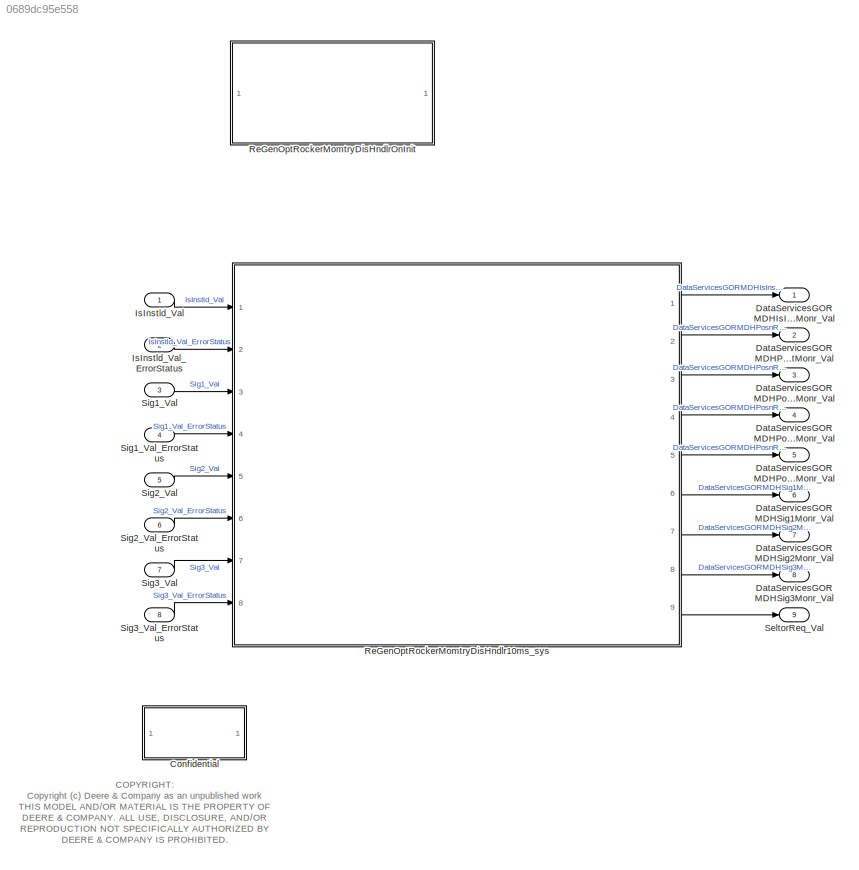
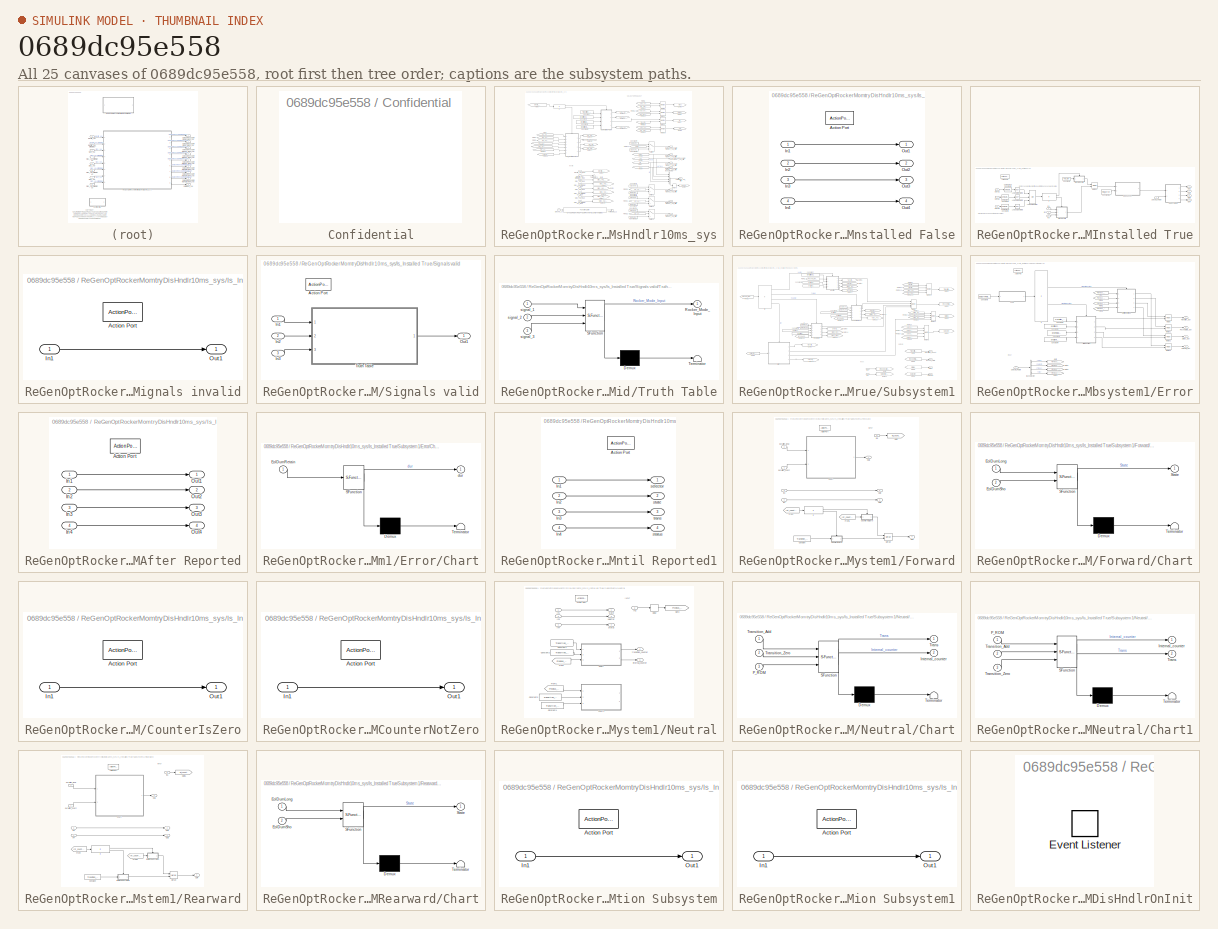
[diagram: thumbnail index - all 25 canvases of the model, root first then tree order]
MODEL slx_0689dc95e558
KIND model
CONFIG AbsTol = auto
CONFIG EnableMultiTasking = off
CONFIG FixedStep = 0.01
CONFIG MaxStep = auto
CONFIG MinStep = auto
CONFIG RelTol = 1e-3
CONFIG SampleTimeConstraint = Unconstrained
CONFIG Solver = FixedStepDiscrete
CONFIG SolverName = FixedStepDiscrete
CONFIG StartTime = 0.0
CONFIG StopTime = 10.0
BLOCK [SubSystem] Confidential
  Ports = []
  RequestExecContextInheritance = off
  Variant = off
BLOCK [Outport] DataServicesGORMDHIsInstldMonr_Val
  IconDisplay = Port number
  OutDataTypeStr = Enum: DiagBool
  PortDimensions = 1
  SamplingMode = Sample based
  SignalType = real
BLOCK [Outport] DataServicesGORMDHPosnReqSeldStMonr_Val
  IconDisplay = Port number
  OutDataTypeStr = Enum: EnCtrlDisSt
  Port = 2
  PortDimensions = 1
  SamplingMode = Sample based
  SignalType = real
BLOCK [Outport] DataServicesGORMDHPosnReqSelnMonr_Val
  IconDisplay = Port number
  OutDataTypeStr = Enum: EnCtrlSeln
  Port = 3
  PortDimensions = 1
  SamplingMode = Sample based
  SignalType = real
BLOCK [Outport] DataServicesGORMDHPosnReqStsMonr_Val
  IconDisplay = Port number
  OutDataTypeStr = Enum: EnCtrlSts
  Port = 4
  PortDimensions = 1
  SamplingMode = Sample based
  SignalType = real
BLOCK [Outport] DataServicesGORMDHPosnReqTransMonr_Val
  IconDisplay = Port number
  OutDataTypeStr = CntAbsMod
  Port = 5
  PortDimensions = 1
  SamplingMode = Sample based
  SignalType = real
BLOCK [Outport] DataServicesGORMDHSig1Monr_Val
  IconDisplay = Port number
  OutDataTypeStr = Enum: DiagBool
  Port = 6
  PortDimensions = 1
  SamplingMode = Sample based
  SignalType = real
BLOCK [Outport] DataServicesGORMDHSig2Monr_Val
  IconDisplay = Port number
  OutDataTypeStr = Enum: DiagBool
  Port = 7
  PortDimensions = 1
  SamplingMode = Sample based
  SignalType = real
BLOCK [Outport] DataServicesGORMDHSig3Monr_Val
  IconDisplay = Port number
  OutDataTypeStr = Enum: DiagBool
  Port = 8
  PortDimensions = 1
  SamplingMode = Sample based
  SignalType = real
BLOCK [Inport] IsInstld_Val
  IconDisplay = Port number
  OutDataTypeStr = Bool
  PortDimensions = 1
  SamplingMode = Sample based
  SignalType = real
BLOCK [Inport] IsInstld_Val_ErrorStatus
  IconDisplay = Port number
  OutDataTypeStr = uint8
  Port = 2
  PortDimensions = 1
  SamplingMode = Sample based
  SignalType = real
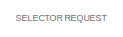
[diagram: ReGenOptRockerMomtryDisHndlr10ms_sys - part 1/3, top center region]
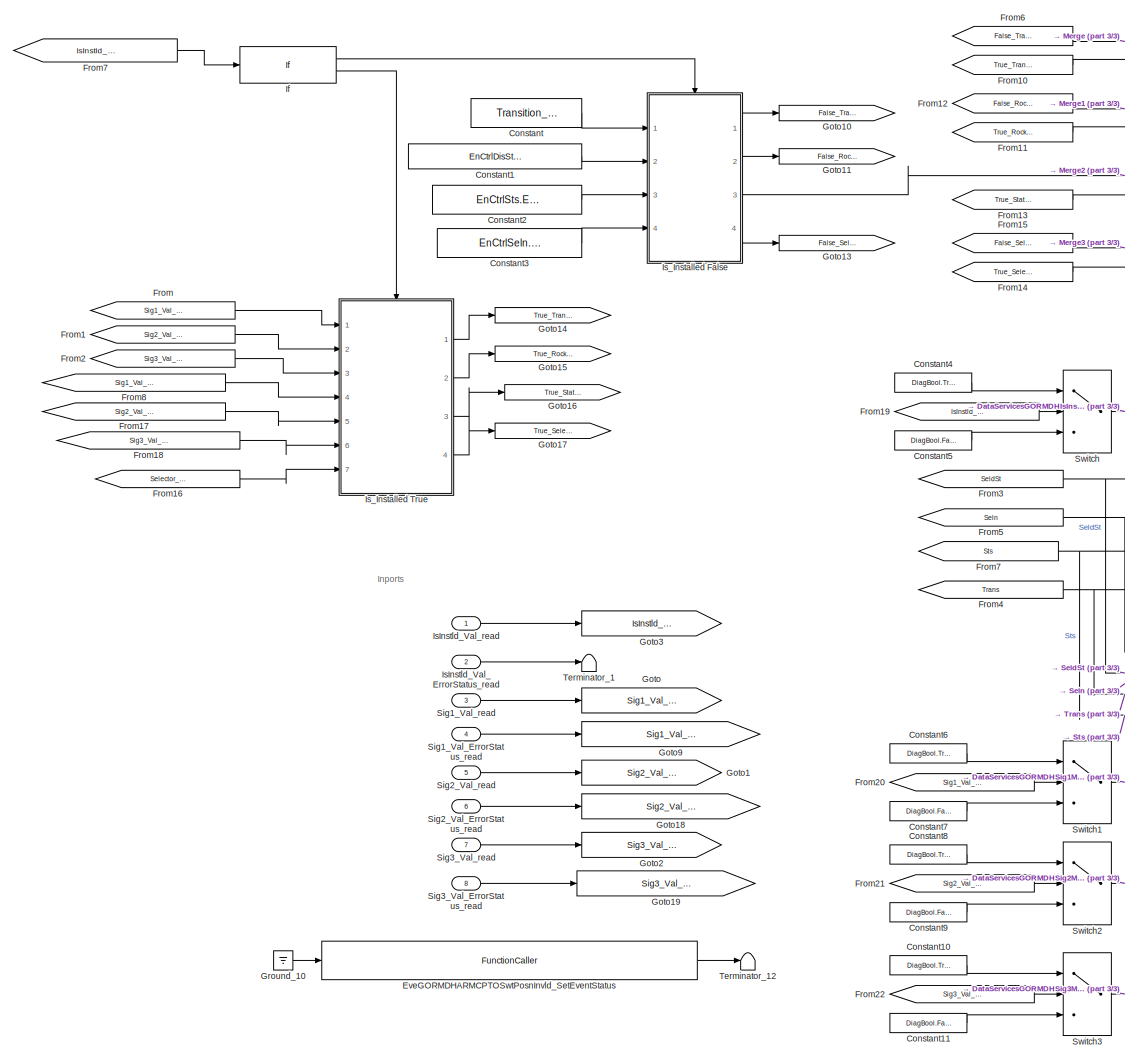
[diagram: ReGenOptRockerMomtryDisHndlr10ms_sys - part 2/3, most of the canvas]
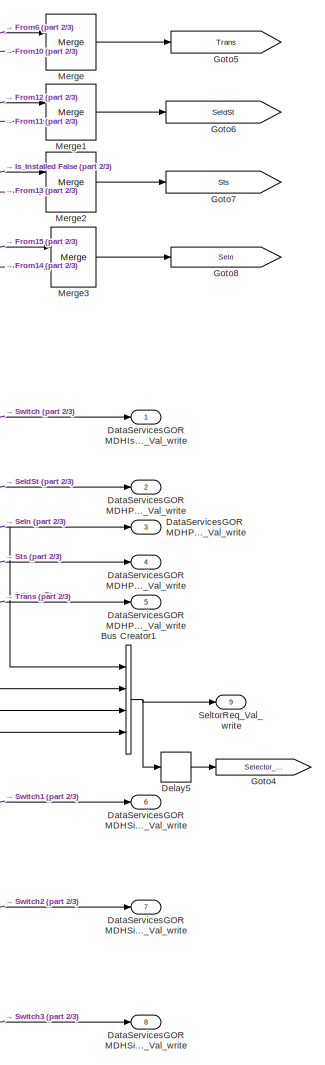
[diagram: ReGenOptRockerMomtryDisHndlr10ms_sys - part 3/3, right side, full height]
BLOCK [SubSystem] ReGenOptRockerMomtryDisHndlr10ms_sys
  Ports = [8, 9]
  RequestExecContextInheritance = off
  SystemSampleTime = 0.01
  TreatAsAtomicUnit = on
  Variant = off
BLOCK [BusCreator] ReGenOptRockerMomtryDisHndlr10ms_sys/Bus Creator1
  DisplayOption = bar
  InheritFromInputs = on
  Inputs = 4
  OutDataTypeStr = Bus: RecCtrlSelr
  Ports = [4, 1]
BLOCK [Constant] ReGenOptRockerMomtryDisHndlr10ms_sys/Constant
  OutDataTypeStr = CntAbsMod
  Value = Transition_Zero
BLOCK [Constant] ReGenOptRockerMomtryDisHndlr10ms_sys/Constant1
  Value = EnCtrlDisSt.EnCtrlDisStIsOff
BLOCK [Constant] ReGenOptRockerMomtryDisHndlr10ms_sys/Constant10
  Value = DiagBool.True
BLOCK [Constant] ReGenOptRockerMomtryDisHndlr10ms_sys/Constant11
  Value = DiagBool.False
BLOCK [Constant] ReGenOptRockerMomtryDisHndlr10ms_sys/Constant2
  Value = EnCtrlSts.EnCtrlStsIsNotAvl
BLOCK [Constant] ReGenOptRockerMomtryDisHndlr10ms_sys/Constant3
  Value = EnCtrlSeln.EnCtrlSelnIsNone
BLOCK [Constant] ReGenOptRockerMomtryDisHndlr10ms_sys/Constant4
  Value = DiagBool.True
BLOCK [Constant] ReGenOptRockerMomtryDisHndlr10ms_sys/Constant5
  Value = DiagBool.False
BLOCK [Constant] ReGenOptRockerMomtryDisHndlr10ms_sys/Constant6
  Value = DiagBool.True
BLOCK [Constant] ReGenOptRockerMomtryDisHndlr10ms_sys/Constant7
  Value = DiagBool.False
BLOCK [Constant] ReGenOptRockerMomtryDisHndlr10ms_sys/Constant8
  Value = DiagBool.True
BLOCK [Constant] ReGenOptRockerMomtryDisHndlr10ms_sys/Constant9
  Value = DiagBool.False
BLOCK [Outport] ReGenOptRockerMomtryDisHndlr10ms_sys/DataServicesGORMDHIsInstldMonr_Val_write
  IconDisplay = Port number
BLOCK [Outport] ReGenOptRockerMomtryDisHndlr10ms_sys/DataServicesGORMDHPosnReqSeldStMonr_Val_write
  IconDisplay = Port number
  Port = 2
BLOCK [Outport] ReGenOptRockerMomtryDisHndlr10ms_sys/DataServicesGORMDHPosnReqSelnMonr_Val_write
  IconDisplay = Port number
  Port = 3
BLOCK [Outport] ReGenOptRockerMomtryDisHndlr10ms_sys/DataServicesGORMDHPosnReqStsMonr_Val_write
  IconDisplay = Port number
  Port = 4
BLOCK [Outport] ReGenOptRockerMomtryDisHndlr10ms_sys/DataServicesGORMDHPosnReqTransMonr_Val_write
  IconDisplay = Port number
  Port = 5
BLOCK [Outport] ReGenOptRockerMomtryDisHndlr10ms_sys/DataServicesGORMDHSig1Monr_Val_write
  IconDisplay = Port number
  Port = 6
BLOCK [Outport] ReGenOptRockerMomtryDisHndlr10ms_sys/DataServicesGORMDHSig2Monr_Val_write
  IconDisplay = Port number
  Port = 7
BLOCK [Outport] ReGenOptRockerMomtryDisHndlr10ms_sys/DataServicesGORMDHSig3Monr_Val_write
  IconDisplay = Port number
  Port = 8
BLOCK [Delay] ReGenOptRockerMomtryDisHndlr10ms_sys/Delay5
  DelayLength = 1
  InitialCondition = 0
  InputPortMap = u0
  Ports = [1, 1]
BLOCK [FunctionCaller] ReGenOptRockerMomtryDisHndlr10ms_sys/EveGORMDHARMCPTOSwtPosnInvld_SetEventStatus
  Description = API for SWCs to report a monitor result to the Dem.This function is reentrant (for different EventId).This function is not reentrant with the other operations defined in DiagnosticMonitor (for the same EventId)This function is synchronous.
  FunctionPrototype = ERR = EveGORMDHARMCPTOSwtPosnInvld_SetEventStatus(EventStatus)
  InputArgumentSpecifications = Dem_EventStatusType.DEM_EVENT_STATUS_PASSED
  OutputArgumentSpecifications = P_Std_ReturnType
  Ports = [1, 1]
BLOCK [From] ReGenOptRockerMomtryDisHndlr10ms_sys/From
  GotoTag = Sig1_Val_read_Tag
BLOCK [From] ReGenOptRockerMomtryDisHndlr10ms_sys/From1
  GotoTag = Sig2_Val_read_Tag
BLOCK [From] ReGenOptRockerMomtryDisHndlr10ms_sys/From10
  GotoTag = True_Transition
BLOCK [From] ReGenOptRockerMomtryDisHndlr10ms_sys/From11
  GotoTag = True_Rocker_State
BLOCK [From] ReGenOptRockerMomtryDisHndlr10ms_sys/From12
  GotoTag = False_Rocker_State
BLOCK [From] ReGenOptRockerMomtryDisHndlr10ms_sys/From13
  GotoTag = True_Status
BLOCK [From] ReGenOptRockerMomtryDisHndlr10ms_sys/From14
  GotoTag = True_Selector
BLOCK [From] ReGenOptRockerMomtryDisHndlr10ms_sys/From15
  GotoTag = False_Selector
BLOCK [From] ReGenOptRockerMomtryDisHndlr10ms_sys/From16
  GotoTag = Selector_Retain
BLOCK [From] ReGenOptRockerMomtryDisHndlr10ms_sys/From17
  GotoTag = Sig2_Val_ErrorStatus_read_Tag
BLOCK [From] ReGenOptRockerMomtryDisHndlr10ms_sys/From18
  GotoTag = Sig3_Val_ErrorStatus_read_Tag
BLOCK [From] ReGenOptRockerMomtryDisHndlr10ms_sys/From19
  GotoTag = IsInstld_Val_read_Tag
BLOCK [From] ReGenOptRockerMomtryDisHndlr10ms_sys/From2
  GotoTag = Sig3_Val_read_Tag
BLOCK [From] ReGenOptRockerMomtryDisHndlr10ms_sys/From20
  GotoTag = Sig1_Val_read_Tag
BLOCK [From] ReGenOptRockerMomtryDisHndlr10ms_sys/From21
  GotoTag = Sig2_Val_read_Tag
BLOCK [From] ReGenOptRockerMomtryDisHndlr10ms_sys/From22
  GotoTag = Sig3_Val_read_Tag
BLOCK [From] ReGenOptRockerMomtryDisHndlr10ms_sys/From3
  GotoTag = SeldSt
BLOCK [From] ReGenOptRockerMomtryDisHndlr10ms_sys/From4
  GotoTag = Trans
BLOCK [From] ReGenOptRockerMomtryDisHndlr10ms_sys/From5
  GotoTag = Seln
BLOCK [From] ReGenOptRockerMomtryDisHndlr10ms_sys/From6
  GotoTag = False_Transition
BLOCK [From] ReGenOptRockerMomtryDisHndlr10ms_sys/From7
  GotoTag = Sts
BLOCK [From] ReGenOptRockerMomtryDisHndlr10ms_sys/From7 
  GotoTag = IsInstld_Val_read_Tag
BLOCK [From] ReGenOptRockerMomtryDisHndlr10ms_sys/From8
  GotoTag = Sig1_Val_ErrorStatus_read_Tag
BLOCK [Goto] ReGenOptRockerMomtryDisHndlr10ms_sys/Goto
  GotoTag = Sig1_Val_read_Tag
BLOCK [Goto] ReGenOptRockerMomtryDisHndlr10ms_sys/Goto1
  GotoTag = Sig2_Val_read_Tag
BLOCK [Goto] ReGenOptRockerMomtryDisHndlr10ms_sys/Goto10
  GotoTag = False_Transition
BLOCK [Goto] ReGenOptRockerMomtryDisHndlr10ms_sys/Goto11
  GotoTag = False_Rocker_State
BLOCK [Goto] ReGenOptRockerMomtryDisHndlr10ms_sys/Goto13
  GotoTag = False_Selector
BLOCK [Goto] ReGenOptRockerMomtryDisHndlr10ms_sys/Goto14
  GotoTag = True_Transition
BLOCK [Goto] ReGenOptRockerMomtryDisHndlr10ms_sys/Goto15
  GotoTag = True_Rocker_State
BLOCK [Goto] ReGenOptRockerMomtryDisHndlr10ms_sys/Goto16
  GotoTag = True_Status
BLOCK [Goto] ReGenOptRockerMomtryDisHndlr10ms_sys/Goto17
  GotoTag = True_Selector
BLOCK [Goto] ReGenOptRockerMomtryDisHndlr10ms_sys/Goto18
  GotoTag = Sig2_Val_ErrorStatus_read_Tag
BLOCK [Goto] ReGenOptRockerMomtryDisHndlr10ms_sys/Goto19
  GotoTag = Sig3_Val_ErrorStatus_read_Tag
BLOCK [Goto] ReGenOptRockerMomtryDisHndlr10ms_sys/Goto2
  GotoTag = Sig3_Val_read_Tag
BLOCK [Goto] ReGenOptRockerMomtryDisHndlr10ms_sys/Goto3
  GotoTag = IsInstld_Val_read_Tag
BLOCK [Goto] ReGenOptRockerMomtryDisHndlr10ms_sys/Goto4
  GotoTag = Selector_Retain
BLOCK [Goto] ReGenOptRockerMomtryDisHndlr10ms_sys/Goto5
  GotoTag = Trans
BLOCK [Goto] ReGenOptRockerMomtryDisHndlr10ms_sys/Goto6
  GotoTag = SeldSt
BLOCK [Goto] ReGenOptRockerMomtryDisHndlr10ms_sys/Goto7
  GotoTag = Sts
BLOCK [Goto] ReGenOptRockerMomtryDisHndlr10ms_sys/Goto8
  GotoTag = Seln
BLOCK [Goto] ReGenOptRockerMomtryDisHndlr10ms_sys/Goto9
  GotoTag = Sig1_Val_ErrorStatus_read_Tag
BLOCK [Ground] ReGenOptRockerMomtryDisHndlr10ms_sys/Ground_10
BLOCK [If] ReGenOptRockerMomtryDisHndlr10ms_sys/If
  ElseIfExpressions = u1 == 1
  IfExpression = u1 == 0
  Ports = [1, 2]
  ShowElse = off
BLOCK [Inport] ReGenOptRockerMomtryDisHndlr10ms_sys/IsInstld_Val_ErrorStatus_read
  IconDisplay = Port number
  Port = 2
BLOCK [Inport] ReGenOptRockerMomtryDisHndlr10ms_sys/IsInstld_Val_read
  IconDisplay = Port number
BLOCK [SubSystem] ReGenOptRockerMomtryDisHndlr10ms_sys/Is_Installed False
  Ports = [4, 4, 0, 0, 0, 0, 0, 1]
  RequestExecContextInheritance = off
  TreatAsAtomicUnit = on
  Variant = off
BLOCK [ActionPort] ReGenOptRockerMomtryDisHndlr10ms_sys/Is_Installed False/Action Port
  ActionType = then
BLOCK [Inport] ReGenOptRockerMomtryDisHndlr10ms_sys/Is_Installed False/In1
  IconDisplay = Port number
BLOCK [Inport] ReGenOptRockerMomtryDisHndlr10ms_sys/Is_Installed False/In2
  IconDisplay = Port number
  Port = 2
BLOCK [Inport] ReGenOptRockerMomtryDisHndlr10ms_sys/Is_Installed False/In3
  IconDisplay = Port number
  Port = 3
BLOCK [Inport] ReGenOptRockerMomtryDisHndlr10ms_sys/Is_Installed False/In4
  IconDisplay = Port number
  Port = 4
BLOCK [Outport] ReGenOptRockerMomtryDisHndlr10ms_sys/Is_Installed False/Out1
  IconDisplay = Port number
BLOCK [Outport] ReGenOptRockerMomtryDisHndlr10ms_sys/Is_Installed False/Out2
  IconDisplay = Port number
  Port = 2
BLOCK [Outport] ReGenOptRockerMomtryDisHndlr10ms_sys/Is_Installed False/Out3
  IconDisplay = Port number
  Port = 3
BLOCK [Outport] ReGenOptRockerMomtryDisHndlr10ms_sys/Is_Installed False/Out4
  IconDisplay = Port number
  Port = 4
BLOCK [SubSystem] ReGenOptRockerMomtryDisHndlr10ms_sys/Is_Installed True
  Ports = [7, 4, 0, 0, 0, 0, 0, 1]
  RequestExecContextInheritance = off
  TreatAsAtomicUnit = on
  Variant = off
BLOCK [ActionPort] ReGenOptRockerMomtryDisHndlr10ms_sys/Is_Installed True/Action Port
  ActionType = elseif
BLOCK [Reference] ReGenOptRockerMomtryDisHndlr10ms_sys/Is_Installed True/Compare To Constant1  REF=simulink/Logic and Bit
Operations/Compare
To Constant
  Ports = [1, 1]
  SourceBlock = simulink/Logic and Bit\nOperations/Compare\nTo Constant
  SourceProductBaseCode = SL
  SourceProductName = Simulink
  SourceType = Compare To Constant
BLOCK [Reference] ReGenOptRockerMomtryDisHndlr10ms_sys/Is_Installed True/Compare To Constant2  REF=simulink/Logic and Bit
Operations/Compare
To Constant
  Ports = [1, 1]
  SourceBlock = simulink/Logic and Bit\nOperations/Compare\nTo Constant
  SourceProductBaseCode = SL
  SourceProductName = Simulink
  SourceType = Compare To Constant
BLOCK [Reference] ReGenOptRockerMomtryDisHndlr10ms_sys/Is_Installed True/Compare To Constant3  REF=simulink/Logic and Bit
Operations/Compare
To Constant
  Ports = [1, 1]
  SourceBlock = simulink/Logic and Bit\nOperations/Compare\nTo Constant
  SourceProductBaseCode = SL
  SourceProductName = Simulink
  SourceType = Compare To Constant
BLOCK [Constant] ReGenOptRockerMomtryDisHndlr10ms_sys/Is_Installed True/Constant1
  Value = RMI_Error
BLOCK [Constant] ReGenOptRockerMomtryDisHndlr10ms_sys/Is_Installed True/Constant12
  Value = RMI_Error
BLOCK [ModelReference] ReGenOptRockerMomtryDisHndlr10ms_sys/Is_Installed True/Debouncer 
  ModelNameDialog = GDS_Model.slx
  ModelReferenceVersion = 1.8
  Ports = [2, 1]
  Variant = off
BLOCK [If] ReGenOptRockerMomtryDisHndlr10ms_sys/Is_Installed True/If
  ElseIfExpressions = u1 == 0
  IfExpression = u1 == 1
  Ports = [1, 2]
  ShowElse = off
BLOCK [Inport] ReGenOptRockerMomtryDisHndlr10ms_sys/Is_Installed True/In1
  IconDisplay = Port number
BLOCK [Inport] ReGenOptRockerMomtryDisHndlr10ms_sys/Is_Installed True/In2
  IconDisplay = Port number
  Port = 2
BLOCK [Inport] ReGenOptRockerMomtryDisHndlr10ms_sys/Is_Installed True/In3
  IconDisplay = Port number
  Port = 3
BLOCK [Logic] ReGenOptRockerMomtryDisHndlr10ms_sys/Is_Installed True/Logical Operator
  AllPortsSameDT = off
  Inputs = 3
  Operator = OR
  OutDataTypeStr = boolean
  Ports = [3, 1]
BLOCK [Logic] ReGenOptRockerMomtryDisHndlr10ms_sys/Is_Installed True/Logical Operator1
  AllPortsSameDT = off
  Operator = NOT
  OutDataTypeStr = boolean
  Ports = [1, 1]
BLOCK [Logic] ReGenOptRockerMomtryDisHndlr10ms_sys/Is_Installed True/Logical Operator2
  AllPortsSameDT = off
  Operator = NOT
  OutDataTypeStr = boolean
  Ports = [1, 1]
BLOCK [Logic] ReGenOptRockerMomtryDisHndlr10ms_sys/Is_Installed True/Logical Operator3
  AllPortsSameDT = off
  Operator = NOT
  OutDataTypeStr = boolean
  Ports = [1, 1]
BLOCK [Merge] ReGenOptRockerMomtryDisHndlr10ms_sys/Is_Installed True/Merge4
  Ports = [2, 1]
BLOCK [Outport] ReGenOptRockerMomtryDisHndlr10ms_sys/Is_Installed True/Out1
  IconDisplay = Port number
BLOCK [Outport] ReGenOptRockerMomtryDisHndlr10ms_sys/Is_Installed True/Out2
  IconDisplay = Port number
  Port = 2
BLOCK [Outport] ReGenOptRockerMomtryDisHndlr10ms_sys/Is_Installed True/Out3
  IconDisplay = Port number
  Port = 3
BLOCK [Outport] ReGenOptRockerMomtryDisHndlr10ms_sys/Is_Installed True/Out4
  IconDisplay = Port number
  Port = 4
BLOCK [Inport] ReGenOptRockerMomtryDisHndlr10ms_sys/Is_Installed True/Selector_Retain
  IconDisplay = Port number
  Port = 7
BLOCK [SubSystem] ReGenOptRockerMomtryDisHndlr10ms_sys/Is_Installed True/Signals invalid
  Ports = [1, 1, 0, 0, 0, 0, 0, 1]
  RequestExecContextInheritance = off
  TreatAsAtomicUnit = on
  Variant = off
BLOCK [ActionPort] ReGenOptRockerMomtryDisHndlr10ms_sys/Is_Installed True/Signals invalid/Action Port
  ActionType = then
BLOCK [Inport] ReGenOptRockerMomtryDisHndlr10ms_sys/Is_Installed True/Signals invalid/In1
  IconDisplay = Port number
BLOCK [Outport] ReGenOptRockerMomtryDisHndlr10ms_sys/Is_Installed True/Signals invalid/Out1
  IconDisplay = Port number
BLOCK [SubSystem] ReGenOptRockerMomtryDisHndlr10ms_sys/Is_Installed True/Signals valid
  Ports = [3, 1, 0, 0, 0, 0, 0, 1]
  RequestExecContextInheritance = off
  TreatAsAtomicUnit = on
  Variant = off
BLOCK [ActionPort] ReGenOptRockerMomtryDisHndlr10ms_sys/Is_Installed True/Signals valid/Action Port
  ActionType = elseif
BLOCK [Inport] ReGenOptRockerMomtryDisHndlr10ms_sys/Is_Installed True/Signals valid/In1
  IconDisplay = Port number
BLOCK [Inport] ReGenOptRockerMomtryDisHndlr10ms_sys/Is_Installed True/Signals valid/In2
  IconDisplay = Port number
  Port = 2
BLOCK [Inport] ReGenOptRockerMomtryDisHndlr10ms_sys/Is_Installed True/Signals valid/In3
  IconDisplay = Port number
  Port = 3
BLOCK [Outport] ReGenOptRockerMomtryDisHndlr10ms_sys/Is_Installed True/Signals valid/Out1
  IconDisplay = Port number
BLOCK [SubSystem] ReGenOptRockerMomtryDisHndlr10ms_sys/Is_Installed True/Signals valid/Truth Table
  ErrorFcn = Stateflow.Translate.translate
  PermitHierarchicalResolution = ExplicitOnly
  Ports = [3, 1]
  RequestExecContextInheritance = off
  SFBlockType = Truth Table
  TreatAsAtomicUnit = on
  Variant = off
BLOCK [Demux] ReGenOptRockerMomtryDisHndlr10ms_sys/Is_Installed True/Signals valid/Truth Table/ Demux 
  Outputs = 1
  Ports = [1, 1]
BLOCK [S-Function] ReGenOptRockerMomtryDisHndlr10ms_sys/Is_Installed True/Signals valid/Truth Table/ SFunction 
  EnableBusSupport = on
  FunctionName = sf_sfun
  PortCounts = [3 2]
  Ports = [3, 2]
  SFcnIsStateOwnerBlock = off
  SFunctionDeploymentMode = off
  Tag = Stateflow S-Function GenOptRockerMomtryDisHndlr 1
BLOCK [Terminator] ReGenOptRockerMomtryDisHndlr10ms_sys/Is_Installed True/Signals valid/Truth Table/ Terminator 
BLOCK [Outport] ReGenOptRockerMomtryDisHndlr10ms_sys/Is_Installed True/Signals valid/Truth Table/Rocker_Mode_Input
  IconDisplay = Port number
BLOCK [Inport] ReGenOptRockerMomtryDisHndlr10ms_sys/Is_Installed True/Signals valid/Truth Table/signal_1
  IconDisplay = Port number
BLOCK [Inport] ReGenOptRockerMomtryDisHndlr10ms_sys/Is_Installed True/Signals valid/Truth Table/signal_2
  IconDisplay = Port number
  Port = 2
BLOCK [Inport] ReGenOptRockerMomtryDisHndlr10ms_sys/Is_Installed True/Signals valid/Truth Table/signal_3
  IconDisplay = Port number
  Port = 3
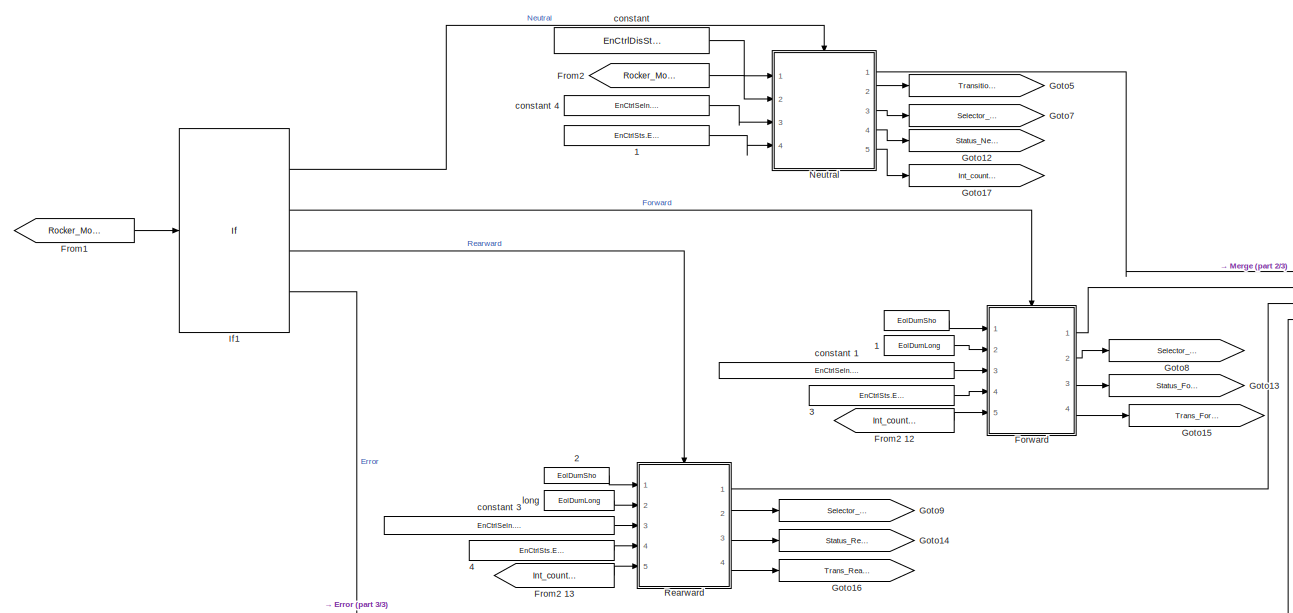
[diagram: ReGenOptRockerMomtryDisHndlr10ms_sys/Is_Installed True/Subsystem1 - part 1/3, central region]
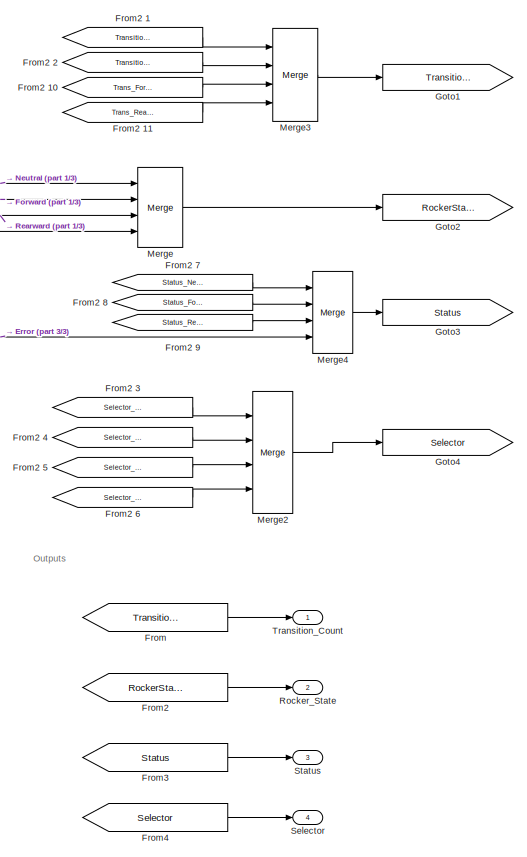
[diagram: ReGenOptRockerMomtryDisHndlr10ms_sys/Is_Installed True/Subsystem1 - part 2/3, right side, full height]
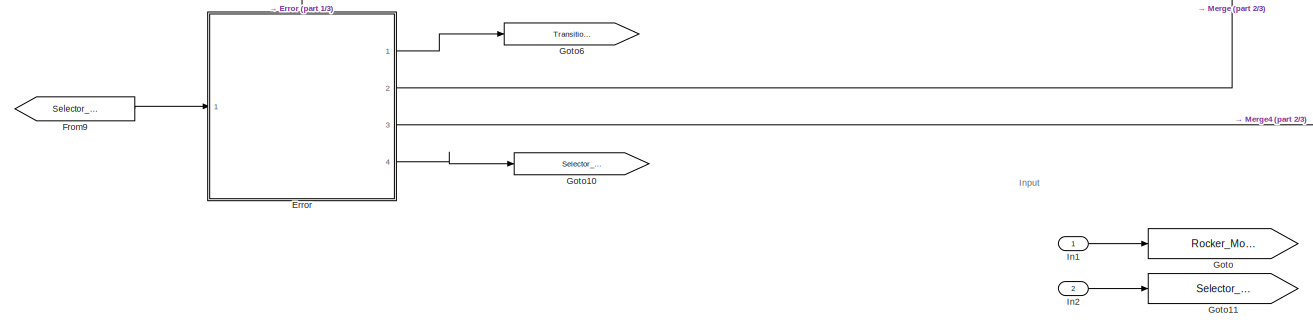
[diagram: ReGenOptRockerMomtryDisHndlr10ms_sys/Is_Installed True/Subsystem1 - part 3/3, bottom center region]
BLOCK [SubSystem] ReGenOptRockerMomtryDisHndlr10ms_sys/Is_Installed True/Subsystem1
  Ports = [2, 4]
  RequestExecContextInheritance = off
  Variant = off
BLOCK [Constant] ReGenOptRockerMomtryDisHndlr10ms_sys/Is_Installed True/Subsystem1/ 
  Value = EolDurnSho
BLOCK [Constant] ReGenOptRockerMomtryDisHndlr10ms_sys/Is_Installed True/Subsystem1/ 1
  Value = EolDurnLong
BLOCK [Constant] ReGenOptRockerMomtryDisHndlr10ms_sys/Is_Installed True/Subsystem1/ 2
  Value = EolDurnSho
BLOCK [Constant] ReGenOptRockerMomtryDisHndlr10ms_sys/Is_Installed True/Subsystem1/1
  Value = EnCtrlSts.EnCtrlStsIsNormative
BLOCK [Constant] ReGenOptRockerMomtryDisHndlr10ms_sys/Is_Installed True/Subsystem1/3
  Value = EnCtrlSts.EnCtrlStsIsNormative
BLOCK [Constant] ReGenOptRockerMomtryDisHndlr10ms_sys/Is_Installed True/Subsystem1/4
  Value = EnCtrlSts.EnCtrlStsIsNormative
BLOCK [SubSystem] ReGenOptRockerMomtryDisHndlr10ms_sys/Is_Installed True/Subsystem1/Error
  Ports = [1, 4, 0, 0, 0, 0, 0, 1]
  RequestExecContextInheritance = off
  TreatAsAtomicUnit = on
  Variant = off
BLOCK [ActionPort] ReGenOptRockerMomtryDisHndlr10ms_sys/Is_Installed True/Subsystem1/Error/Action Port
  ActionType = elseif
BLOCK [SubSystem] ReGenOptRockerMomtryDisHndlr10ms_sys/Is_Installed True/Subsystem1/Error/After Reported
  Ports = [4, 4, 0, 0, 0, 0, 0, 1]
  RequestExecContextInheritance = off
  TreatAsAtomicUnit = on
  Variant = off
BLOCK [ActionPort] ReGenOptRockerMomtryDisHndlr10ms_sys/Is_Installed True/Subsystem1/Error/After Reported/Action Port
  ActionType = elseif
BLOCK [Inport] ReGenOptRockerMomtryDisHndlr10ms_sys/Is_Installed True/Subsystem1/Error/After Reported/In1
  IconDisplay = Port number
BLOCK [Inport] ReGenOptRockerMomtryDisHndlr10ms_sys/Is_Installed True/Subsystem1/Error/After Reported/In2
  IconDisplay = Port number
  Port = 2
BLOCK [Inport] ReGenOptRockerMomtryDisHndlr10ms_sys/Is_Installed True/Subsystem1/Error/After Reported/In3
  IconDisplay = Port number
  Port = 3
BLOCK [Inport] ReGenOptRockerMomtryDisHndlr10ms_sys/Is_Installed True/Subsystem1/Error/After Reported/In4
  IconDisplay = Port number
  Port = 4
BLOCK [Outport] ReGenOptRockerMomtryDisHndlr10ms_sys/Is_Installed True/Subsystem1/Error/After Reported/Out1
  IconDisplay = Port number
BLOCK [Outport] ReGenOptRockerMomtryDisHndlr10ms_sys/Is_Installed True/Subsystem1/Error/After Reported/Out2
  IconDisplay = Port number
  Port = 2
BLOCK [Outport] ReGenOptRockerMomtryDisHndlr10ms_sys/Is_Installed True/Subsystem1/Error/After Reported/Out3
  IconDisplay = Port number
  Port = 3
BLOCK [Outport] ReGenOptRockerMomtryDisHndlr10ms_sys/Is_Installed True/Subsystem1/Error/After Reported/Out4
  IconDisplay = Port number
  Port = 4
BLOCK [BusSelector] ReGenOptRockerMomtryDisHndlr10ms_sys/Is_Installed True/Subsystem1/Error/Bus Selector
  OutputAsBus = off
  OutputSignals = Seln,SeldSt,Trans,Sts
  Ports = [1, 4]
BLOCK [SubSystem] ReGenOptRockerMomtryDisHndlr10ms_sys/Is_Installed True/Subsystem1/Error/Chart
  ErrorFcn = Stateflow.Translate.translate
  PermitHierarchicalResolution = ExplicitOnly
  Ports = [1, 1]
  RequestExecContextInheritance = off
  SFBlockType = Chart
  TreatAsAtomicUnit = on
  Variant = off
BLOCK [Demux] ReGenOptRockerMomtryDisHndlr10ms_sys/Is_Installed True/Subsystem1/Error/Chart/ Demux 
  Outputs = 1
  Ports = [1, 1]
BLOCK [S-Function] ReGenOptRockerMomtryDisHndlr10ms_sys/Is_Installed True/Subsystem1/Error/Chart/ SFunction 
  EnableBusSupport = on
  FunctionName = sf_sfun
  PortCounts = [1 2]
  Ports = [1, 2]
  SFcnIsStateOwnerBlock = off
  SFunctionDeploymentMode = off
  Tag = Stateflow S-Function GenOptRockerMomtryDisHndlr 4
BLOCK [Terminator] ReGenOptRockerMomtryDisHndlr10ms_sys/Is_Installed True/Subsystem1/Error/Chart/ Terminator 
BLOCK [Inport] ReGenOptRockerMomtryDisHndlr10ms_sys/Is_Installed True/Subsystem1/Error/Chart/EolDurnRetain
  IconDisplay = Port number
BLOCK [Outport] ReGenOptRockerMomtryDisHndlr10ms_sys/Is_Installed True/Subsystem1/Error/Chart/dur
  IconDisplay = Port number
BLOCK [Constant] ReGenOptRockerMomtryDisHndlr10ms_sys/Is_Installed True/Subsystem1/Error/Constant1
  Value = Transition_Count
BLOCK [Constant] ReGenOptRockerMomtryDisHndlr10ms_sys/Is_Installed True/Subsystem1/Error/Constant2
  Value = EnCtrlDisSt.EnCtrlDisStIsOff
BLOCK [Constant] ReGenOptRockerMomtryDisHndlr10ms_sys/Is_Installed True/Subsystem1/Error/Constant3
  Value = EnCtrlSts.EnCtrlStsIsErr
BLOCK [Constant] ReGenOptRockerMomtryDisHndlr10ms_sys/Is_Installed True/Subsystem1/Error/Constant4
  Value = EnCtrlSeln.EnCtrlSelnIsNone
BLOCK [Constant] ReGenOptRockerMomtryDisHndlr10ms_sys/Is_Installed True/Subsystem1/Error/Constant5
  Value = EolDurnRetain
BLOCK [From] ReGenOptRockerMomtryDisHndlr10ms_sys/Is_Installed True/Subsystem1/Error/From
  GotoTag = Previous_Selector
BLOCK [From] ReGenOptRockerMomtryDisHndlr10ms_sys/Is_Installed True/Subsystem1/Error/From1
  GotoTag = Previous_State
BLOCK [From] ReGenOptRockerMomtryDisHndlr10ms_sys/Is_Installed True/Subsystem1/Error/From2
  GotoTag = Previous_Trans
BLOCK [From] ReGenOptRockerMomtryDisHndlr10ms_sys/Is_Installed True/Subsystem1/Error/From3
  GotoTag = Previous_Status
BLOCK [Goto] ReGenOptRockerMomtryDisHndlr10ms_sys/Is_Installed True/Subsystem1/Error/Goto
  GotoTag = Previous_Selector
BLOCK [Goto] ReGenOptRockerMomtryDisHndlr10ms_sys/Is_Installed True/Subsystem1/Error/Goto1
  GotoTag = Previous_State
BLOCK [Goto] ReGenOptRockerMomtryDisHndlr10ms_sys/Is_Installed True/Subsystem1/Error/Goto2
  GotoTag = Previous_Trans
BLOCK [Goto] ReGenOptRockerMomtryDisHndlr10ms_sys/Is_Installed True/Subsystem1/Error/Goto3
  GotoTag = Previous_Status
BLOCK [If] ReGenOptRockerMomtryDisHndlr10ms_sys/Is_Installed True/Subsystem1/Error/If
  ElseIfExpressions = u1==2
  IfExpression = u1==1
  Ports = [1, 2]
  ShowElse = off
BLOCK [Merge] ReGenOptRockerMomtryDisHndlr10ms_sys/Is_Installed True/Subsystem1/Error/Merge
  Ports = [2, 1]
BLOCK [Merge] ReGenOptRockerMomtryDisHndlr10ms_sys/Is_Installed True/Subsystem1/Error/Merge1
  Ports = [2, 1]
BLOCK [Merge] ReGenOptRockerMomtryDisHndlr10ms_sys/Is_Installed True/Subsystem1/Error/Merge2
  Ports = [2, 1]
BLOCK [Merge] ReGenOptRockerMomtryDisHndlr10ms_sys/Is_Installed True/Subsystem1/Error/Merge3
  Ports = [2, 1]
BLOCK [Outport] ReGenOptRockerMomtryDisHndlr10ms_sys/Is_Installed True/Subsystem1/Error/RockerState_Out
  IconDisplay = Port number
  Port = 2
BLOCK [Outport] ReGenOptRockerMomtryDisHndlr10ms_sys/Is_Installed True/Subsystem1/Error/Selector_Out
  IconDisplay = Port number
  Port = 4
BLOCK [Inport] ReGenOptRockerMomtryDisHndlr10ms_sys/Is_Installed True/Subsystem1/Error/Selector_Retain
  IconDisplay = Port number
BLOCK [Outport] ReGenOptRockerMomtryDisHndlr10ms_sys/Is_Installed True/Subsystem1/Error/Status_Out
  IconDisplay = Port number
  Port = 3
BLOCK [Outport] ReGenOptRockerMomtryDisHndlr10ms_sys/Is_Installed True/Subsystem1/Error/Transition_Out
  IconDisplay = Port number
BLOCK [SubSystem] ReGenOptRockerMomtryDisHndlr10ms_sys/Is_Installed True/Subsystem1/Error/Until Reported1
  Ports = [4, 4, 0, 0, 0, 0, 0, 1]
  RequestExecContextInheritance = off
  TreatAsAtomicUnit = on
  Variant = off
BLOCK [ActionPort] ReGenOptRockerMomtryDisHndlr10ms_sys/Is_Installed True/Subsystem1/Error/Until Reported1/Action Port
  ActionType = then
BLOCK [Inport] ReGenOptRockerMomtryDisHndlr10ms_sys/Is_Installed True/Subsystem1/Error/Until Reported1/In1
  IconDisplay = Port number
  OutDataTypeStr = Enum: EnCtrlSeln
BLOCK [Inport] ReGenOptRockerMomtryDisHndlr10ms_sys/Is_Installed True/Subsystem1/Error/Until Reported1/In2
  IconDisplay = Port number
  OutDataTypeStr = Enum: EnCtrlDisSt
  Port = 2
BLOCK [Inport] ReGenOptRockerMomtryDisHndlr10ms_sys/Is_Installed True/Subsystem1/Error/Until Reported1/In3
  IconDisplay = Port number
  OutDataTypeStr = CntAbsMod
  Port = 3
BLOCK [Inport] ReGenOptRockerMomtryDisHndlr10ms_sys/Is_Installed True/Subsystem1/Error/Until Reported1/In4
  IconDisplay = Port number
  OutDataTypeStr = Enum: EnCtrlSts
  Port = 4
BLOCK [Outport] ReGenOptRockerMomtryDisHndlr10ms_sys/Is_Installed True/Subsystem1/Error/Until Reported1/selector
  IconDisplay = Port number
  OutDataTypeStr = Enum: EnCtrlSeln
BLOCK [Outport] ReGenOptRockerMomtryDisHndlr10ms_sys/Is_Installed True/Subsystem1/Error/Until Reported1/state
  IconDisplay = Port number
  OutDataTypeStr = Enum: EnCtrlDisSt
  Port = 2
BLOCK [Outport] ReGenOptRockerMomtryDisHndlr10ms_sys/Is_Installed True/Subsystem1/Error/Until Reported1/status
  IconDisplay = Port number
  OutDataTypeStr = Enum: EnCtrlSts
  Port = 4
BLOCK [Outport] ReGenOptRockerMomtryDisHndlr10ms_sys/Is_Installed True/Subsystem1/Error/Until Reported1/trans
  IconDisplay = Port number
  OutDataTypeStr = CntAbsMod
  Port = 3
BLOCK [SubSystem] ReGenOptRockerMomtryDisHndlr10ms_sys/Is_Installed True/Subsystem1/Forward
  Ports = [5, 4, 0, 0, 0, 0, 0, 1]
  RequestExecContextInheritance = off
  TreatAsAtomicUnit = on
  Variant = off
BLOCK [ActionPort] ReGenOptRockerMomtryDisHndlr10ms_sys/Is_Installed True/Subsystem1/Forward/Action Port
  ActionType = elseif
BLOCK [SubSystem] ReGenOptRockerMomtryDisHndlr10ms_sys/Is_Installed True/Subsystem1/Forward/Chart
  ErrorFcn = Stateflow.Translate.translate
  PermitHierarchicalResolution = ExplicitOnly
  Ports = [2, 1]
  RequestExecContextInheritance = off
  SFBlockType = Chart
  TreatAsAtomicUnit = on
  Variant = off
BLOCK [Demux] ReGenOptRockerMomtryDisHndlr10ms_sys/Is_Installed True/Subsystem1/Forward/Chart/ Demux 
  Outputs = 1
  Ports = [1, 1]
BLOCK [S-Function] ReGenOptRockerMomtryDisHndlr10ms_sys/Is_Installed True/Subsystem1/Forward/Chart/ SFunction 
  EnableBusSupport = on
  FunctionName = sf_sfun
  PortCounts = [2 2]
  Ports = [2, 2]
  SFcnIsStateOwnerBlock = off
  SFunctionDeploymentMode = off
  Tag = Stateflow S-Function GenOptRockerMomtryDisHndlr 2
BLOCK [Terminator] ReGenOptRockerMomtryDisHndlr10ms_sys/Is_Installed True/Subsystem1/Forward/Chart/ Terminator 
BLOCK [Inport] ReGenOptRockerMomtryDisHndlr10ms_sys/Is_Installed True/Subsystem1/Forward/Chart/EolDurnLong
  IconDisplay = Port number
BLOCK [Inport] ReGenOptRockerMomtryDisHndlr10ms_sys/Is_Installed True/Subsystem1/Forward/Chart/EolDurnSho
  IconDisplay = Port number
  Port = 2
BLOCK [Outport] ReGenOptRockerMomtryDisHndlr10ms_sys/Is_Installed True/Subsystem1/Forward/Chart/State
  IconDisplay = Port number
BLOCK [Constant] ReGenOptRockerMomtryDisHndlr10ms_sys/Is_Installed True/Subsystem1/Forward/Constant
  OutDataTypeStr = CntAbsMod
  Value = Transition_Zero
BLOCK [SubSystem] ReGenOptRockerMomtryDisHndlr10ms_sys/Is_Installed True/Subsystem1/Forward/CounterIsZero
  Ports = [1, 1, 0, 0, 0, 0, 0, 1]
  RequestExecContextInheritance = off
  TreatAsAtomicUnit = on
  Variant = off
BLOCK [ActionPort] ReGenOptRockerMomtryDisHndlr10ms_sys/Is_Installed True/Subsystem1/Forward/CounterIsZero/Action Port
  ActionType = else
BLOCK [Inport] ReGenOptRockerMomtryDisHndlr10ms_sys/Is_Installed True/Subsystem1/Forward/CounterIsZero/In1
  IconDisplay = Port number
  OutDataTypeStr = CntAbsMod
BLOCK [Outport] ReGenOptRockerMomtryDisHndlr10ms_sys/Is_Installed True/Subsystem1/Forward/CounterIsZero/Out1
  IconDisplay = Port number
  OutDataTypeStr = CntAbsMod
BLOCK [SubSystem] ReGenOptRockerMomtryDisHndlr10ms_sys/Is_Installed True/Subsystem1/Forward/CounterNotZero
  Ports = [1, 1, 0, 0, 0, 0, 0, 1]
  RequestExecContextInheritance = off
  TreatAsAtomicUnit = on
  Variant = off
BLOCK [ActionPort] ReGenOptRockerMomtryDisHndlr10ms_sys/Is_Installed True/Subsystem1/Forward/CounterNotZero/Action Port
  ActionType = then
BLOCK [Inport] ReGenOptRockerMomtryDisHndlr10ms_sys/Is_Installed True/Subsystem1/Forward/CounterNotZero/In1
  IconDisplay = Port number
  OutDataTypeStr = CntAbsMod
BLOCK [Outport] ReGenOptRockerMomtryDisHndlr10ms_sys/Is_Installed True/Subsystem1/Forward/CounterNotZero/Out1
  IconDisplay = Port number
  OutDataTypeStr = CntAbsMod
BLOCK [From] ReGenOptRockerMomtryDisHndlr10ms_sys/Is_Installed True/Subsystem1/Forward/From
  GotoTag = Int_counter
BLOCK [From] ReGenOptRockerMomtryDisHndlr10ms_sys/Is_Installed True/Subsystem1/Forward/From1
  GotoTag = Int_counter
BLOCK [Goto] ReGenOptRockerMomtryDisHndlr10ms_sys/Is_Installed True/Subsystem1/Forward/Goto
  GotoTag = Int_counter
BLOCK [If] ReGenOptRockerMomtryDisHndlr10ms_sys/Is_Installed True/Subsystem1/Forward/If
  Ports = [1, 2]
BLOCK [Inport] ReGenOptRockerMomtryDisHndlr10ms_sys/Is_Installed True/Subsystem1/Forward/In3
  IconDisplay = Port number
  Port = 3
BLOCK [Inport] ReGenOptRockerMomtryDisHndlr10ms_sys/Is_Installed True/Subsystem1/Forward/In4
  IconDisplay = Port number
  Port = 4
BLOCK [Inport] ReGenOptRockerMomtryDisHndlr10ms_sys/Is_Installed True/Subsystem1/Forward/In5
  IconDisplay = Port number
  OutDataTypeStr = CntAbsMod
  Port = 5
BLOCK [Merge] ReGenOptRockerMomtryDisHndlr10ms_sys/Is_Installed True/Subsystem1/Forward/Merge
  Ports = [2, 1]
BLOCK [Outport] ReGenOptRockerMomtryDisHndlr10ms_sys/Is_Installed True/Subsystem1/Forward/Out1
  IconDisplay = Port number
BLOCK [Outport] ReGenOptRockerMomtryDisHndlr10ms_sys/Is_Installed True/Subsystem1/Forward/Out2
  IconDisplay = Port number
  Port = 2
BLOCK [Outport] ReGenOptRockerMomtryDisHndlr10ms_sys/Is_Installed True/Subsystem1/Forward/Out3
  IconDisplay = Port number
  Port = 3
BLOCK [Outport] ReGenOptRockerMomtryDisHndlr10ms_sys/Is_Installed True/Subsystem1/Forward/Out4
  IconDisplay = Port number
  OutDataTypeStr = CntAbsMod
  Port = 4
BLOCK [Inport] ReGenOptRockerMomtryDisHndlr10ms_sys/Is_Installed True/Subsystem1/Forward/duration_long
  IconDisplay = Port number
  Port = 2
BLOCK [Inport] ReGenOptRockerMomtryDisHndlr10ms_sys/Is_Installed True/Subsystem1/Forward/duration_short
  IconDisplay = Port number
BLOCK [From] ReGenOptRockerMomtryDisHndlr10ms_sys/Is_Installed True/Subsystem1/From
  GotoTag = Transition_Count
BLOCK [From] ReGenOptRockerMomtryDisHndlr10ms_sys/Is_Installed True/Subsystem1/From1
  GotoTag = Rocker_Mode_Output
BLOCK [From] ReGenOptRockerMomtryDisHndlr10ms_sys/Is_Installed True/Subsystem1/From2
  GotoTag = RockerState
BLOCK [From] ReGenOptRockerMomtryDisHndlr10ms_sys/Is_Installed True/Subsystem1/From2 
  GotoTag = Rocker_Mode_Output
BLOCK [From] ReGenOptRockerMomtryDisHndlr10ms_sys/Is_Installed True/Subsystem1/From2 1
  GotoTag = Transition_Neutral
BLOCK [From] ReGenOptRockerMomtryDisHndlr10ms_sys/Is_Installed True/Subsystem1/From2 10
  GotoTag = Trans_Forward
BLOCK [From] ReGenOptRockerMomtryDisHndlr10ms_sys/Is_Installed True/Subsystem1/From2 11
  GotoTag = Trans_Rearward
BLOCK [From] ReGenOptRockerMomtryDisHndlr10ms_sys/Is_Installed True/Subsystem1/From2 12
  GotoTag = Int_counter
BLOCK [From] ReGenOptRockerMomtryDisHndlr10ms_sys/Is_Installed True/Subsystem1/From2 13
  GotoTag = Int_counter
BLOCK [From] ReGenOptRockerMomtryDisHndlr10ms_sys/Is_Installed True/Subsystem1/From2 2
  GotoTag = Transition_Error
BLOCK [From] ReGenOptRockerMomtryDisHndlr10ms_sys/Is_Installed True/Subsystem1/From2 3
  GotoTag = Selector_None
BLOCK [From] ReGenOptRockerMomtryDisHndlr10ms_sys/Is_Installed True/Subsystem1/From2 4
  GotoTag = Selector_FUI
BLOCK [From] ReGenOptRockerMomtryDisHndlr10ms_sys/Is_Installed True/Subsystem1/From2 5
  GotoTag = Selector_BDL
BLOCK [From] ReGenOptRockerMomtryDisHndlr10ms_sys/Is_Installed True/Subsystem1/From2 6
  GotoTag = Selector_Error
BLOCK [From] ReGenOptRockerMomtryDisHndlr10ms_sys/Is_Installed True/Subsystem1/From2 7
  GotoTag = Status_Neutral
BLOCK [From] ReGenOptRockerMomtryDisHndlr10ms_sys/Is_Installed True/Subsystem1/From2 8
  GotoTag = Status_Forward
BLOCK [From] ReGenOptRockerMomtryDisHndlr10ms_sys/Is_Installed True/Subsystem1/From2 9
  GotoTag = Status_Rearward
BLOCK [From] ReGenOptRockerMomtryDisHndlr10ms_sys/Is_Installed True/Subsystem1/From3
  GotoTag = Status
BLOCK [From] ReGenOptRockerMomtryDisHndlr10ms_sys/Is_Installed True/Subsystem1/From4
  GotoTag = Selector
BLOCK [From] ReGenOptRockerMomtryDisHndlr10ms_sys/Is_Installed True/Subsystem1/From9
  GotoTag = Selector_Retain
BLOCK [Goto] ReGenOptRockerMomtryDisHndlr10ms_sys/Is_Installed True/Subsystem1/Goto
  GotoTag = Rocker_Mode_Output
BLOCK [Goto] ReGenOptRockerMomtryDisHndlr10ms_sys/Is_Installed True/Subsystem1/Goto1
  GotoTag = Transition_Count
BLOCK [Goto] ReGenOptRockerMomtryDisHndlr10ms_sys/Is_Installed True/Subsystem1/Goto10
  GotoTag = Selector_Error
BLOCK [Goto] ReGenOptRockerMomtryDisHndlr10ms_sys/Is_Installed True/Subsystem1/Goto11
  GotoTag = Selector_Retain
BLOCK [Goto] ReGenOptRockerMomtryDisHndlr10ms_sys/Is_Installed True/Subsystem1/Goto12
  GotoTag = Status_Neutral
BLOCK [Goto] ReGenOptRockerMomtryDisHndlr10ms_sys/Is_Installed True/Subsystem1/Goto13
  GotoTag = Status_Forward
BLOCK [Goto] ReGenOptRockerMomtryDisHndlr10ms_sys/Is_Installed True/Subsystem1/Goto14
  GotoTag = Status_Rearward
BLOCK [Goto] ReGenOptRockerMomtryDisHndlr10ms_sys/Is_Installed True/Subsystem1/Goto15
  GotoTag = Trans_Forward
BLOCK [Goto] ReGenOptRockerMomtryDisHndlr10ms_sys/Is_Installed True/Subsystem1/Goto16
  GotoTag = Trans_Rearward
BLOCK [Goto] ReGenOptRockerMomtryDisHndlr10ms_sys/Is_Installed True/Subsystem1/Goto17
  GotoTag = Int_counter
BLOCK [Goto] ReGenOptRockerMomtryDisHndlr10ms_sys/Is_Installed True/Subsystem1/Goto2
  GotoTag = RockerState
BLOCK [Goto] ReGenOptRockerMomtryDisHndlr10ms_sys/Is_Installed True/Subsystem1/Goto3
  GotoTag = Status
BLOCK [Goto] ReGenOptRockerMomtryDisHndlr10ms_sys/Is_Installed True/Subsystem1/Goto4
  GotoTag = Selector
BLOCK [Goto] ReGenOptRockerMomtryDisHndlr10ms_sys/Is_Installed True/Subsystem1/Goto5
  GotoTag = Transition_Neutral
BLOCK [Goto] ReGenOptRockerMomtryDisHndlr10ms_sys/Is_Installed True/Subsystem1/Goto6
  GotoTag = Transition_Error
BLOCK [Goto] ReGenOptRockerMomtryDisHndlr10ms_sys/Is_Installed True/Subsystem1/Goto7
  GotoTag = Selector_None
BLOCK [Goto] ReGenOptRockerMomtryDisHndlr10ms_sys/Is_Installed True/Subsystem1/Goto8
  GotoTag = Selector_FUI
BLOCK [Goto] ReGenOptRockerMomtryDisHndlr10ms_sys/Is_Installed True/Subsystem1/Goto9
  GotoTag = Selector_BDL
BLOCK [If] ReGenOptRockerMomtryDisHndlr10ms_sys/Is_Installed True/Subsystem1/If1
  ElseIfExpressions = u1 == 1, u1 == 2, u1 == 3
  IfExpression = u1 == 0
  Ports = [1, 4]
  ShowElse = off
BLOCK [Inport] ReGenOptRockerMomtryDisHndlr10ms_sys/Is_Installed True/Subsystem1/In1
  IconDisplay = Port number
BLOCK [Inport] ReGenOptRockerMomtryDisHndlr10ms_sys/Is_Installed True/Subsystem1/In2
  IconDisplay = Port number
  Port = 2
BLOCK [Merge] ReGenOptRockerMomtryDisHndlr10ms_sys/Is_Installed True/Subsystem1/Merge
  Inputs = 4
  Ports = [4, 1]
BLOCK [Merge] ReGenOptRockerMomtryDisHndlr10ms_sys/Is_Installed True/Subsystem1/Merge2
  Inputs = 4
  Ports = [4, 1]
BLOCK [Merge] ReGenOptRockerMomtryDisHndlr10ms_sys/Is_Installed True/Subsystem1/Merge3
  Inputs = 4
  Ports = [4, 1]
BLOCK [Merge] ReGenOptRockerMomtryDisHndlr10ms_sys/Is_Installed True/Subsystem1/Merge4
  Inputs = 4
  Ports = [4, 1]
BLOCK [SubSystem] ReGenOptRockerMomtryDisHndlr10ms_sys/Is_Installed True/Subsystem1/Neutral
  Ports = [4, 5, 0, 0, 0, 0, 0, 1]
  RequestExecContextInheritance = off
  TreatAsAtomicUnit = on
  Variant = off
BLOCK [ActionPort] ReGenOptRockerMomtryDisHndlr10ms_sys/Is_Installed True/Subsystem1/Neutral/Action Port
  ActionType = then
BLOCK [SubSystem] ReGenOptRockerMomtryDisHndlr10ms_sys/Is_Installed True/Subsystem1/Neutral/Chart
  ErrorFcn = Stateflow.Translate.translate
  PermitHierarchicalResolution = ExplicitOnly
  Ports = [3, 2]
  RequestExecContextInheritance = off
  SFBlockType = Chart
  TreatAsAtomicUnit = on
  Variant = off
BLOCK [Demux] ReGenOptRockerMomtryDisHndlr10ms_sys/Is_Installed True/Subsystem1/Neutral/Chart/ Demux 
  Outputs = 1
  Ports = [1, 1]
BLOCK [S-Function] ReGenOptRockerMomtryDisHndlr10ms_sys/Is_Installed True/Subsystem1/Neutral/Chart/ SFunction 
  EnableBusSupport = on
  FunctionName = sf_sfun
  Parameters = Transition_Add
  PortCounts = [3 3]
  Ports = [3, 3]
  SFcnIsStateOwnerBlock = off
  SFunctionDeploymentMode = off
  Tag = Stateflow S-Function GenOptRockerMomtryDisHndlr 6
BLOCK [Terminator] ReGenOptRockerMomtryDisHndlr10ms_sys/Is_Installed True/Subsystem1/Neutral/Chart/ Terminator 
BLOCK [Outport] ReGenOptRockerMomtryDisHndlr10ms_sys/Is_Installed True/Subsystem1/Neutral/Chart/Internal_counter
  IconDisplay = Port number
  Port = 2
BLOCK [Inport] ReGenOptRockerMomtryDisHndlr10ms_sys/Is_Installed True/Subsystem1/Neutral/Chart/P_ROM
  IconDisplay = Port number
  Port = 3
BLOCK [Outport] ReGenOptRockerMomtryDisHndlr10ms_sys/Is_Installed True/Subsystem1/Neutral/Chart/Trans
  IconDisplay = Port number
BLOCK [Inport] ReGenOptRockerMomtryDisHndlr10ms_sys/Is_Installed True/Subsystem1/Neutral/Chart/Transition_Add
  IconDisplay = Port number
BLOCK [Inport] ReGenOptRockerMomtryDisHndlr10ms_sys/Is_Installed True/Subsystem1/Neutral/Chart/Transition_Zero
  IconDisplay = Port number
  Port = 2
BLOCK [SubSystem] ReGenOptRockerMomtryDisHndlr10ms_sys/Is_Installed True/Subsystem1/Neutral/Chart1
  Commented = on
  ErrorFcn = Stateflow.Translate.translate
  PermitHierarchicalResolution = ExplicitOnly
  Ports = [3, 2]
  RequestExecContextInheritance = off
  SFBlockType = Chart
  TreatAsAtomicUnit = on
  Variant = off
BLOCK [Demux] ReGenOptRockerMomtryDisHndlr10ms_sys/Is_Installed True/Subsystem1/Neutral/Chart1/ Demux 
  Outputs = 1
  Ports = [1, 1]
BLOCK [S-Function] ReGenOptRockerMomtryDisHndlr10ms_sys/Is_Installed True/Subsystem1/Neutral/Chart1/ SFunction 
  EnableBusSupport = on
  FunctionName = sf_sfun
  PortCounts = [3 3]
  Ports = [3, 3]
  SFcnIsStateOwnerBlock = off
  SFunctionDeploymentMode = off
  Tag = Stateflow S-Function GenOptRockerMomtryDisHndlr 3
BLOCK [Terminator] ReGenOptRockerMomtryDisHndlr10ms_sys/Is_Installed True/Subsystem1/Neutral/Chart1/ Terminator 
BLOCK [Outport] ReGenOptRockerMomtryDisHndlr10ms_sys/Is_Installed True/Subsystem1/Neutral/Chart1/Internal_counter
  IconDisplay = Port number
BLOCK [Inport] ReGenOptRockerMomtryDisHndlr10ms_sys/Is_Installed True/Subsystem1/Neutral/Chart1/P_ROM
  IconDisplay = Port number
BLOCK [Outport] ReGenOptRockerMomtryDisHndlr10ms_sys/Is_Installed True/Subsystem1/Neutral/Chart1/Trans
  IconDisplay = Port number
  Port = 2
BLOCK [Inport] ReGenOptRockerMomtryDisHndlr10ms_sys/Is_Installed True/Subsystem1/Neutral/Chart1/Transition_Add
  IconDisplay = Port number
  Port = 2
BLOCK [Inport] ReGenOptRockerMomtryDisHndlr10ms_sys/Is_Installed True/Subsystem1/Neutral/Chart1/Transition_Zero
  IconDisplay = Port number
  Port = 3
BLOCK [Constant] ReGenOptRockerMomtryDisHndlr10ms_sys/Is_Installed True/Subsystem1/Neutral/Constant1
  Value = Transition_Add
BLOCK [Constant] ReGenOptRockerMomtryDisHndlr10ms_sys/Is_Installed True/Subsystem1/Neutral/Constant2
  Value = Transition_Zero
BLOCK [Constant] ReGenOptRockerMomtryDisHndlr10ms_sys/Is_Installed True/Subsystem1/Neutral/Constant3
  Commented = on
  Value = Transition_Add
BLOCK [Constant] ReGenOptRockerMomtryDisHndlr10ms_sys/Is_Installed True/Subsystem1/Neutral/Constant4
  Commented = on
  Value = Transition_Zero
BLOCK [Delay] ReGenOptRockerMomtryDisHndlr10ms_sys/Is_Installed True/Subsystem1/Neutral/Delay
  DelayLength = 1
  InitialCondition = 0
  InputPortMap = u0
  Ports = [1, 1]
BLOCK [From] ReGenOptRockerMomtryDisHndlr10ms_sys/Is_Installed True/Subsystem1/Neutral/From
  GotoTag = Previous_RMO
BLOCK [From] ReGenOptRockerMomtryDisHndlr10ms_sys/Is_Installed True/Subsystem1/Neutral/From1
  Commented = on
  GotoTag = Previous_RMO
BLOCK [Goto] ReGenOptRockerMomtryDisHndlr10ms_sys/Is_Installed True/Subsystem1/Neutral/Goto
  GotoTag = Previous_RMO
BLOCK [Inport] ReGenOptRockerMomtryDisHndlr10ms_sys/Is_Installed True/Subsystem1/Neutral/In1
  IconDisplay = Port number
BLOCK [Inport] ReGenOptRockerMomtryDisHndlr10ms_sys/Is_Installed True/Subsystem1/Neutral/In2
  IconDisplay = Port number
  Port = 2
BLOCK [Inport] ReGenOptRockerMomtryDisHndlr10ms_sys/Is_Installed True/Subsystem1/Neutral/In3
  IconDisplay = Port number
  Port = 3
BLOCK [Inport] ReGenOptRockerMomtryDisHndlr10ms_sys/Is_Installed True/Subsystem1/Neutral/In4
  IconDisplay = Port number
  Port = 4
BLOCK [Outport] ReGenOptRockerMomtryDisHndlr10ms_sys/Is_Installed True/Subsystem1/Neutral/internal_counter
  IconDisplay = Port number
  OutDataTypeStr = CntAbsMod
  Port = 5
BLOCK [Outport] ReGenOptRockerMomtryDisHndlr10ms_sys/Is_Installed True/Subsystem1/Neutral/selector
  IconDisplay = Port number
  Port = 3
BLOCK [Outport] ReGenOptRockerMomtryDisHndlr10ms_sys/Is_Installed True/Subsystem1/Neutral/state
  IconDisplay = Port number
BLOCK [Outport] ReGenOptRockerMomtryDisHndlr10ms_sys/Is_Installed True/Subsystem1/Neutral/status
  IconDisplay = Port number
  Port = 4
BLOCK [Outport] ReGenOptRockerMomtryDisHndlr10ms_sys/Is_Installed True/Subsystem1/Neutral/transition_counter
  IconDisplay = Port number
  OutDataTypeStr = CntAbsMod
  Port = 2
BLOCK [SubSystem] ReGenOptRockerMomtryDisHndlr10ms_sys/Is_Installed True/Subsystem1/Rearward
  Ports = [5, 4, 0, 0, 0, 0, 0, 1]
  RequestExecContextInheritance = off
  TreatAsAtomicUnit = on
  Variant = off
BLOCK [ActionPort] ReGenOptRockerMomtryDisHndlr10ms_sys/Is_Installed True/Subsystem1/Rearward/Action Port
  ActionType = elseif
BLOCK [SubSystem] ReGenOptRockerMomtryDisHndlr10ms_sys/Is_Installed True/Subsystem1/Rearward/Chart
  ErrorFcn = Stateflow.Translate.translate
  PermitHierarchicalResolution = ExplicitOnly
  Ports = [2, 1]
  RequestExecContextInheritance = off
  SFBlockType = Chart
  TreatAsAtomicUnit = on
  Variant = off
BLOCK [Demux] ReGenOptRockerMomtryDisHndlr10ms_sys/Is_Installed True/Subsystem1/Rearward/Chart/ Demux 
  Outputs = 1
  Ports = [1, 1]
BLOCK [S-Function] ReGenOptRockerMomtryDisHndlr10ms_sys/Is_Installed True/Subsystem1/Rearward/Chart/ SFunction 
  EnableBusSupport = on
  FunctionName = sf_sfun
  PortCounts = [2 2]
  Ports = [2, 2]
  SFcnIsStateOwnerBlock = off
  SFunctionDeploymentMode = off
  Tag = Stateflow S-Function GenOptRockerMomtryDisHndlr 5
BLOCK [Terminator] ReGenOptRockerMomtryDisHndlr10ms_sys/Is_Installed True/Subsystem1/Rearward/Chart/ Terminator 
BLOCK [Inport] ReGenOptRockerMomtryDisHndlr10ms_sys/Is_Installed True/Subsystem1/Rearward/Chart/EolDurnLong
  IconDisplay = Port number
BLOCK [Inport] ReGenOptRockerMomtryDisHndlr10ms_sys/Is_Installed True/Subsystem1/Rearward/Chart/EolDurnSho
  IconDisplay = Port number
  Port = 2
BLOCK [Outport] ReGenOptRockerMomtryDisHndlr10ms_sys/Is_Installed True/Subsystem1/Rearward/Chart/State
  IconDisplay = Port number
BLOCK [Constant] ReGenOptRockerMomtryDisHndlr10ms_sys/Is_Installed True/Subsystem1/Rearward/Constant
  OutDataTypeStr = CntAbsMod
  Value = Transition_Zero
BLOCK [From] ReGenOptRockerMomtryDisHndlr10ms_sys/Is_Installed True/Subsystem1/Rearward/From
  GotoTag = Int_counter
BLOCK [From] ReGenOptRockerMomtryDisHndlr10ms_sys/Is_Installed True/Subsystem1/Rearward/From2
  GotoTag = Int_counter
BLOCK [Goto] ReGenOptRockerMomtryDisHndlr10ms_sys/Is_Installed True/Subsystem1/Rearward/Goto1
  GotoTag = Int_counter
BLOCK [If] ReGenOptRockerMomtryDisHndlr10ms_sys/Is_Installed True/Subsystem1/Rearward/If
  Ports = [1, 2]
BLOCK [SubSystem] ReGenOptRockerMomtryDisHndlr10ms_sys/Is_Installed True/Subsystem1/Rearward/If Action Subsystem
  Ports = [1, 1, 0, 0, 0, 0, 0, 1]
  RequestExecContextInheritance = off
  TreatAsAtomicUnit = on
  Variant = off
BLOCK [ActionPort] ReGenOptRockerMomtryDisHndlr10ms_sys/Is_Installed True/Subsystem1/Rearward/If Action Subsystem/Action Port
  ActionType = then
BLOCK [Inport] ReGenOptRockerMomtryDisHndlr10ms_sys/Is_Installed True/Subsystem1/Rearward/If Action Subsystem/In1
  IconDisplay = Port number
BLOCK [Outport] ReGenOptRockerMomtryDisHndlr10ms_sys/Is_Installed True/Subsystem1/Rearward/If Action Subsystem/Out1
  IconDisplay = Port number
BLOCK [SubSystem] ReGenOptRockerMomtryDisHndlr10ms_sys/Is_Installed True/Subsystem1/Rearward/If Action Subsystem1
  Ports = [1, 1, 0, 0, 0, 0, 0, 1]
  RequestExecContextInheritance = off
  TreatAsAtomicUnit = on
  Variant = off
BLOCK [ActionPort] ReGenOptRockerMomtryDisHndlr10ms_sys/Is_Installed True/Subsystem1/Rearward/If Action Subsystem1/Action Port
  ActionType = else
BLOCK [Inport] ReGenOptRockerMomtryDisHndlr10ms_sys/Is_Installed True/Subsystem1/Rearward/If Action Subsystem1/In1
  IconDisplay = Port number
  OutDataTypeStr = CntAbsMod
BLOCK [Outport] ReGenOptRockerMomtryDisHndlr10ms_sys/Is_Installed True/Subsystem1/Rearward/If Action Subsystem1/Out1
  IconDisplay = Port number
  OutDataTypeStr = CntAbsMod
BLOCK [Inport] ReGenOptRockerMomtryDisHndlr10ms_sys/Is_Installed True/Subsystem1/Rearward/In3
  IconDisplay = Port number
  Port = 3
BLOCK [Inport] ReGenOptRockerMomtryDisHndlr10ms_sys/Is_Installed True/Subsystem1/Rearward/In4
  IconDisplay = Port number
  Port = 4
BLOCK [Inport] ReGenOptRockerMomtryDisHndlr10ms_sys/Is_Installed True/Subsystem1/Rearward/In5
  IconDisplay = Port number
  Port = 5
BLOCK [Merge] ReGenOptRockerMomtryDisHndlr10ms_sys/Is_Installed True/Subsystem1/Rearward/Merge
  Ports = [2, 1]
BLOCK [Outport] ReGenOptRockerMomtryDisHndlr10ms_sys/Is_Installed True/Subsystem1/Rearward/Out1
  IconDisplay = Port number
BLOCK [Outport] ReGenOptRockerMomtryDisHndlr10ms_sys/Is_Installed True/Subsystem1/Rearward/Out2
  IconDisplay = Port number
  Port = 2
BLOCK [Outport] ReGenOptRockerMomtryDisHndlr10ms_sys/Is_Installed True/Subsystem1/Rearward/Out3
  IconDisplay = Port number
  Port = 3
BLOCK [Outport] ReGenOptRockerMomtryDisHndlr10ms_sys/Is_Installed True/Subsystem1/Rearward/Out4
  IconDisplay = Port number
  OutDataTypeStr = CntAbsMod
  Port = 4
BLOCK [Inport] ReGenOptRockerMomtryDisHndlr10ms_sys/Is_Installed True/Subsystem1/Rearward/duration_long
  IconDisplay = Port number
  Port = 2
BLOCK [Inport] ReGenOptRockerMomtryDisHndlr10ms_sys/Is_Installed True/Subsystem1/Rearward/duration_short
  IconDisplay = Port number
BLOCK [Outport] ReGenOptRockerMomtryDisHndlr10ms_sys/Is_Installed True/Subsystem1/Rocker_State
  IconDisplay = Port number
  Port = 2
BLOCK [Outport] ReGenOptRockerMomtryDisHndlr10ms_sys/Is_Installed True/Subsystem1/Selector
  IconDisplay = Port number
  Port = 4
BLOCK [Outport] ReGenOptRockerMomtryDisHndlr10ms_sys/Is_Installed True/Subsystem1/Status
  IconDisplay = Port number
  Port = 3
BLOCK [Outport] ReGenOptRockerMomtryDisHndlr10ms_sys/Is_Installed True/Subsystem1/Transition_Count
  IconDisplay = Port number
BLOCK [Constant] ReGenOptRockerMomtryDisHndlr10ms_sys/Is_Installed True/Subsystem1/constant 
  Value = EnCtrlDisSt.EnCtrlDisStIsOff
BLOCK [Constant] ReGenOptRockerMomtryDisHndlr10ms_sys/Is_Installed True/Subsystem1/constant 1
  Value = EnCtrlSeln.EnCtrlSelnIsFwdUpRiInnrDetent
BLOCK [Constant] ReGenOptRockerMomtryDisHndlr10ms_sys/Is_Installed True/Subsystem1/constant 3
  Value = EnCtrlSeln.EnCtrlSelnIsBackwDwnLeInnrDetent
BLOCK [Constant] ReGenOptRockerMomtryDisHndlr10ms_sys/Is_Installed True/Subsystem1/constant 4
  Value = EnCtrlSeln.EnCtrlSelnIsNone
BLOCK [Constant] ReGenOptRockerMomtryDisHndlr10ms_sys/Is_Installed True/Subsystem1/long
  Value = EolDurnLong
BLOCK [Inport] ReGenOptRockerMomtryDisHndlr10ms_sys/Is_Installed True/signal1
  IconDisplay = Port number
  Port = 4
BLOCK [Inport] ReGenOptRockerMomtryDisHndlr10ms_sys/Is_Installed True/signal2
  IconDisplay = Port number
  Port = 5
BLOCK [Inport] ReGenOptRockerMomtryDisHndlr10ms_sys/Is_Installed True/signal3 
  IconDisplay = Port number
  Port = 6
BLOCK [Merge] ReGenOptRockerMomtryDisHndlr10ms_sys/Merge
  Ports = [2, 1]
BLOCK [Merge] ReGenOptRockerMomtryDisHndlr10ms_sys/Merge1
  Ports = [2, 1]
BLOCK [Merge] ReGenOptRockerMomtryDisHndlr10ms_sys/Merge2
  Ports = [2, 1]
BLOCK [Merge] ReGenOptRockerMomtryDisHndlr10ms_sys/Merge3
  Ports = [2, 1]
BLOCK [Outport] ReGenOptRockerMomtryDisHndlr10ms_sys/SeltorReq_Val_write
  IconDisplay = Port number
  OutDataTypeStr = Bus: RecCtrlSelr
  Port = 9
BLOCK [Inport] ReGenOptRockerMomtryDisHndlr10ms_sys/Sig1_Val_ErrorStatus_read
  IconDisplay = Port number
  Port = 4
BLOCK [Inport] ReGenOptRockerMomtryDisHndlr10ms_sys/Sig1_Val_read
  IconDisplay = Port number
  Port = 3
BLOCK [Inport] ReGenOptRockerMomtryDisHndlr10ms_sys/Sig2_Val_ErrorStatus_read
  IconDisplay = Port number
  Port = 6
BLOCK [Inport] ReGenOptRockerMomtryDisHndlr10ms_sys/Sig2_Val_read
  IconDisplay = Port number
  Port = 5
BLOCK [Inport] ReGenOptRockerMomtryDisHndlr10ms_sys/Sig3_Val_ErrorStatus_read
  IconDisplay = Port number
  Port = 8
BLOCK [Inport] ReGenOptRockerMomtryDisHndlr10ms_sys/Sig3_Val_read
  IconDisplay = Port number
  Port = 7
BLOCK [Switch] ReGenOptRockerMomtryDisHndlr10ms_sys/Switch
  Criteria = u2 > Threshold
  InputSameDT = off
  SaturateOnIntegerOverflow = off
BLOCK [Switch] ReGenOptRockerMomtryDisHndlr10ms_sys/Switch1
  Criteria = u2 > Threshold
  InputSameDT = off
  SaturateOnIntegerOverflow = off
BLOCK [Switch] ReGenOptRockerMomtryDisHndlr10ms_sys/Switch2
  Criteria = u2 > Threshold
  InputSameDT = off
  SaturateOnIntegerOverflow = off
BLOCK [Switch] ReGenOptRockerMomtryDisHndlr10ms_sys/Switch3
  Criteria = u2 > Threshold
  InputSameDT = off
  SaturateOnIntegerOverflow = off
BLOCK [Terminator] ReGenOptRockerMomtryDisHndlr10ms_sys/Terminator_1
BLOCK [Terminator] ReGenOptRockerMomtryDisHndlr10ms_sys/Terminator_12
BLOCK [SubSystem] ReGenOptRockerMomtryDisHndlrOnInit
  Ports = []
  RequestExecContextInheritance = off
  Variant = off
BLOCK [EventListener] ReGenOptRockerMomtryDisHndlrOnInit/Event Listener
  EventName = reset
  EventType = Initialize
  VariantControl = Variant
BLOCK [Outport] SeltorReq_Val
  BusOutputAsStruct = on
  IconDisplay = Port number
  OutDataTypeStr = Bus: RecCtrlSelr
  Port = 9
  PortDimensions = 1
  SamplingMode = Sample based
  SignalType = real
BLOCK [Inport] Sig1_Val
  IconDisplay = Port number
  OutDataTypeStr = Bool
  Port = 3
  PortDimensions = 1
  SamplingMode = Sample based
  SignalType = real
BLOCK [Inport] Sig1_Val_ErrorStatus
  IconDisplay = Port number
  OutDataTypeStr = uint8
  Port = 4
  PortDimensions = 1
  SamplingMode = Sample based
  SignalType = real
BLOCK [Inport] Sig2_Val
  IconDisplay = Port number
  OutDataTypeStr = Bool
  Port = 5
  PortDimensions = 1
  SamplingMode = Sample based
  SignalType = real
BLOCK [Inport] Sig2_Val_ErrorStatus
  IconDisplay = Port number
  OutDataTypeStr = uint8
  Port = 6
  PortDimensions = 1
  SamplingMode = Sample based
  SignalType = real
BLOCK [Inport] Sig3_Val
  IconDisplay = Port number
  OutDataTypeStr = Bool
  Port = 7
  PortDimensions = 1
  SamplingMode = Sample based
  SignalType = real
BLOCK [Inport] Sig3_Val_ErrorStatus
  IconDisplay = Port number
  OutDataTypeStr = uint8
  Port = 8
  PortDimensions = 1
  SamplingMode = Sample based
  SignalType = real
ANNOTATION (root): <copyright redacted>
ANNOTATION ReGenOptRockerMomtryDisHndlr10ms_sys: Inports
ANNOTATION ReGenOptRockerMomtryDisHndlr10ms_sys: SELECTOR REQUEST
ANNOTATION ReGenOptRockerMomtryDisHndlr10ms_sys/Is_Installed True: Si es igual a 1 es que esta bien (es valido)
ANNOTATION ReGenOptRockerMomtryDisHndlr10ms_sys/Is_Installed True: Entonces, si es true significa que minimo una señal es invalida
ANNOTATION ReGenOptRockerMomtryDisHndlr10ms_sys/Is_Installed True/Subsystem1: Input
ANNOTATION ReGenOptRockerMomtryDisHndlr10ms_sys/Is_Installed True/Subsystem1: Outputs
ANNOTATION ReGenOptRockerMomtryDisHndlr10ms_sys/Is_Installed True/Subsystem1/Error: Input
ANNOTATION ReGenOptRockerMomtryDisHndlr10ms_sys/Is_Installed True/Subsystem1/Forward: INPUT
ANNOTATION ReGenOptRockerMomtryDisHndlr10ms_sys/Is_Installed True/Subsystem1/Neutral: INPUT
ANNOTATION ReGenOptRockerMomtryDisHndlr10ms_sys/Is_Installed True/Subsystem1/Rearward: INPUT
LINE IsInstld_Val:1 -> ReGenOptRockerMomtryDisHndlr10ms_sys:1
LINE IsInstld_Val_ErrorStatus:1 -> ReGenOptRockerMomtryDisHndlr10ms_sys:2
NET ReGenOptRockerMomtryDisHndlr10ms_sys/Bus Creator1:1 -> ReGenOptRockerMomtryDisHndlr10ms_sys/Delay5:1, ReGenOptRockerMomtryDisHndlr10ms_sys/SeltorReq_Val_write:1
LINE ReGenOptRockerMomtryDisHndlr10ms_sys/Constant10:1 -> ReGenOptRockerMomtryDisHndlr10ms_sys/Switch3:1
LINE ReGenOptRockerMomtryDisHndlr10ms_sys/Constant11:1 -> ReGenOptRockerMomtryDisHndlr10ms_sys/Switch3:3
LINE ReGenOptRockerMomtryDisHndlr10ms_sys/Constant1:1 -> ReGenOptRockerMomtryDisHndlr10ms_sys/Is_Installed False:2
LINE ReGenOptRockerMomtryDisHndlr10ms_sys/Constant2:1 -> ReGenOptRockerMomtryDisHndlr10ms_sys/Is_Installed False:3
LINE ReGenOptRockerMomtryDisHndlr10ms_sys/Constant3:1 -> ReGenOptRockerMomtryDisHndlr10ms_sys/Is_Installed False:4
LINE ReGenOptRockerMomtryDisHndlr10ms_sys/Constant4:1 -> ReGenOptRockerMomtryDisHndlr10ms_sys/Switch:1
LINE ReGenOptRockerMomtryDisHndlr10ms_sys/Constant5:1 -> ReGenOptRockerMomtryDisHndlr10ms_sys/Switch:3
LINE ReGenOptRockerMomtryDisHndlr10ms_sys/Constant6:1 -> ReGenOptRockerMomtryDisHndlr10ms_sys/Switch1:1
LINE ReGenOptRockerMomtryDisHndlr10ms_sys/Constant7:1 -> ReGenOptRockerMomtryDisHndlr10ms_sys/Switch1:3
LINE ReGenOptRockerMomtryDisHndlr10ms_sys/Constant8:1 -> ReGenOptRockerMomtryDisHndlr10ms_sys/Switch2:1
LINE ReGenOptRockerMomtryDisHndlr10ms_sys/Constant9:1 -> ReGenOptRockerMomtryDisHndlr10ms_sys/Switch2:3
LINE ReGenOptRockerMomtryDisHndlr10ms_sys/Constant:1 -> ReGenOptRockerMomtryDisHndlr10ms_sys/Is_Installed False:1
LINE ReGenOptRockerMomtryDisHndlr10ms_sys/Delay5:1 -> ReGenOptRockerMomtryDisHndlr10ms_sys/Goto4:1
LINE ReGenOptRockerMomtryDisHndlr10ms_sys/EveGORMDHARMCPTOSwtPosnInvld_SetEventStatus:1 -> ReGenOptRockerMomtryDisHndlr10ms_sys/Terminator_12:1
LINE ReGenOptRockerMomtryDisHndlr10ms_sys/From10:1 -> ReGenOptRockerMomtryDisHndlr10ms_sys/Merge:2
LINE ReGenOptRockerMomtryDisHndlr10ms_sys/From11:1 -> ReGenOptRockerMomtryDisHndlr10ms_sys/Merge1:2
LINE ReGenOptRockerMomtryDisHndlr10ms_sys/From12:1 -> ReGenOptRockerMomtryDisHndlr10ms_sys/Merge1:1
LINE ReGenOptRockerMomtryDisHndlr10ms_sys/From13:1 -> ReGenOptRockerMomtryDisHndlr10ms_sys/Merge2:2
LINE ReGenOptRockerMomtryDisHndlr10ms_sys/From14:1 -> ReGenOptRockerMomtryDisHndlr10ms_sys/Merge3:2
LINE ReGenOptRockerMomtryDisHndlr10ms_sys/From15:1 -> ReGenOptRockerMomtryDisHndlr10ms_sys/Merge3:1
LINE ReGenOptRockerMomtryDisHndlr10ms_sys/From16:1 -> ReGenOptRockerMomtryDisHndlr10ms_sys/Is_Installed True:7
LINE ReGenOptRockerMomtryDisHndlr10ms_sys/From17:1 -> ReGenOptRockerMomtryDisHndlr10ms_sys/Is_Installed True:5
LINE ReGenOptRockerMomtryDisHndlr10ms_sys/From18:1 -> ReGenOptRockerMomtryDisHndlr10ms_sys/Is_Installed True:6
LINE ReGenOptRockerMomtryDisHndlr10ms_sys/From19:1 -> ReGenOptRockerMomtryDisHndlr10ms_sys/Switch:2
LINE ReGenOptRockerMomtryDisHndlr10ms_sys/From1:1 -> ReGenOptRockerMomtryDisHndlr10ms_sys/Is_Installed True:2
LINE ReGenOptRockerMomtryDisHndlr10ms_sys/From20:1 -> ReGenOptRockerMomtryDisHndlr10ms_sys/Switch1:2
LINE ReGenOptRockerMomtryDisHndlr10ms_sys/From21:1 -> ReGenOptRockerMomtryDisHndlr10ms_sys/Switch2:2
LINE ReGenOptRockerMomtryDisHndlr10ms_sys/From22:1 -> ReGenOptRockerMomtryDisHndlr10ms_sys/Switch3:2
LINE ReGenOptRockerMomtryDisHndlr10ms_sys/From2:1 -> ReGenOptRockerMomtryDisHndlr10ms_sys/Is_Installed True:3
NET ReGenOptRockerMomtryDisHndlr10ms_sys/From3:1 -> ReGenOptRockerMomtryDisHndlr10ms_sys/Bus Creator1:2, ReGenOptRockerMomtryDisHndlr10ms_sys/DataServicesGORMDHPosnReqSeldStMonr_Val_write:1
NET ReGenOptRockerMomtryDisHndlr10ms_sys/From4:1 -> ReGenOptRockerMomtryDisHndlr10ms_sys/Bus Creator1:3, ReGenOptRockerMomtryDisHndlr10ms_sys/DataServicesGORMDHPosnReqTransMonr_Val_write:1
NET ReGenOptRockerMomtryDisHndlr10ms_sys/From5:1 -> ReGenOptRockerMomtryDisHndlr10ms_sys/Bus Creator1:1, ReGenOptRockerMomtryDisHndlr10ms_sys/DataServicesGORMDHPosnReqSelnMonr_Val_write:1
LINE ReGenOptRockerMomtryDisHndlr10ms_sys/From6:1 -> ReGenOptRockerMomtryDisHndlr10ms_sys/Merge:1
LINE ReGenOptRockerMomtryDisHndlr10ms_sys/From7 :1 -> ReGenOptRockerMomtryDisHndlr10ms_sys/If:1
NET ReGenOptRockerMomtryDisHndlr10ms_sys/From7:1 -> ReGenOptRockerMomtryDisHndlr10ms_sys/Bus Creator1:4, ReGenOptRockerMomtryDisHndlr10ms_sys/DataServicesGORMDHPosnReqStsMonr_Val_write:1
LINE ReGenOptRockerMomtryDisHndlr10ms_sys/From8:1 -> ReGenOptRockerMomtryDisHndlr10ms_sys/Is_Installed True:4
LINE ReGenOptRockerMomtryDisHndlr10ms_sys/From:1 -> ReGenOptRockerMomtryDisHndlr10ms_sys/Is_Installed True:1
LINE ReGenOptRockerMomtryDisHndlr10ms_sys/Ground_10:1 -> ReGenOptRockerMomtryDisHndlr10ms_sys/EveGORMDHARMCPTOSwtPosnInvld_SetEventStatus:1
LINE ReGenOptRockerMomtryDisHndlr10ms_sys/If:1 -> ReGenOptRockerMomtryDisHndlr10ms_sys/Is_Installed False:ifaction
LINE ReGenOptRockerMomtryDisHndlr10ms_sys/If:2 -> ReGenOptRockerMomtryDisHndlr10ms_sys/Is_Installed True:ifaction
LINE ReGenOptRockerMomtryDisHndlr10ms_sys/IsInstld_Val_ErrorStatus_read:1 -> ReGenOptRockerMomtryDisHndlr10ms_sys/Terminator_1:1
LINE ReGenOptRockerMomtryDisHndlr10ms_sys/IsInstld_Val_read:1 -> ReGenOptRockerMomtryDisHndlr10ms_sys/Goto3:1
LINE ReGenOptRockerMomtryDisHndlr10ms_sys/Is_Installed False/In1:1 -> ReGenOptRockerMomtryDisHndlr10ms_sys/Is_Installed False/Out1:1
LINE ReGenOptRockerMomtryDisHndlr10ms_sys/Is_Installed False/In2:1 -> ReGenOptRockerMomtryDisHndlr10ms_sys/Is_Installed False/Out2:1
LINE ReGenOptRockerMomtryDisHndlr10ms_sys/Is_Installed False/In3:1 -> ReGenOptRockerMomtryDisHndlr10ms_sys/Is_Installed False/Out3:1
LINE ReGenOptRockerMomtryDisHndlr10ms_sys/Is_Installed False/In4:1 -> ReGenOptRockerMomtryDisHndlr10ms_sys/Is_Installed False/Out4:1
LINE ReGenOptRockerMomtryDisHndlr10ms_sys/Is_Installed False:1 -> ReGenOptRockerMomtryDisHndlr10ms_sys/Goto10:1
LINE ReGenOptRockerMomtryDisHndlr10ms_sys/Is_Installed False:2 -> ReGenOptRockerMomtryDisHndlr10ms_sys/Goto11:1
LINE ReGenOptRockerMomtryDisHndlr10ms_sys/Is_Installed False:3 -> ReGenOptRockerMomtryDisHndlr10ms_sys/Merge2:1
LINE ReGenOptRockerMomtryDisHndlr10ms_sys/Is_Installed False:4 -> ReGenOptRockerMomtryDisHndlr10ms_sys/Goto13:1
LINE ReGenOptRockerMomtryDisHndlr10ms_sys/Is_Installed True/Compare To Constant1:1 -> ReGenOptRockerMomtryDisHndlr10ms_sys/Is_Installed True/Logical Operator2:1
LINE ReGenOptRockerMomtryDisHndlr10ms_sys/Is_Installed True/Compare To Constant2:1 -> ReGenOptRockerMomtryDisHndlr10ms_sys/Is_Installed True/Logical Operator3:1
LINE ReGenOptRockerMomtryDisHndlr10ms_sys/Is_Installed True/Compare To Constant3:1 -> ReGenOptRockerMomtryDisHndlr10ms_sys/Is_Installed True/Logical Operator1:1
LINE ReGenOptRockerMomtryDisHndlr10ms_sys/Is_Installed True/Constant12:1 -> ReGenOptRockerMomtryDisHndlr10ms_sys/Is_Installed True/Debouncer :2
LINE ReGenOptRockerMomtryDisHndlr10ms_sys/Is_Installed True/Constant1:1 -> ReGenOptRockerMomtryDisHndlr10ms_sys/Is_Installed True/Signals invalid:1
LINE ReGenOptRockerMomtryDisHndlr10ms_sys/Is_Installed True/Debouncer :1 -> ReGenOptRockerMomtryDisHndlr10ms_sys/Is_Installed True/Subsystem1:1
LINE ReGenOptRockerMomtryDisHndlr10ms_sys/Is_Installed True/If:1 -> ReGenOptRockerMomtryDisHndlr10ms_sys/Is_Installed True/Signals invalid:ifaction
LINE ReGenOptRockerMomtryDisHndlr10ms_sys/Is_Installed True/If:2 -> ReGenOptRockerMomtryDisHndlr10ms_sys/Is_Installed True/Signals valid:ifaction
LINE ReGenOptRockerMomtryDisHndlr10ms_sys/Is_Installed True/In1:1 -> ReGenOptRockerMomtryDisHndlr10ms_sys/Is_Installed True/Signals valid:1
LINE ReGenOptRockerMomtryDisHndlr10ms_sys/Is_Installed True/In2:1 -> ReGenOptRockerMomtryDisHndlr10ms_sys/Is_Installed True/Signals valid:2
LINE ReGenOptRockerMomtryDisHndlr10ms_sys/Is_Installed True/In3:1 -> ReGenOptRockerMomtryDisHndlr10ms_sys/Is_Installed True/Signals valid:3
LINE ReGenOptRockerMomtryDisHndlr10ms_sys/Is_Installed True/Logical Operator1:1 -> ReGenOptRockerMomtryDisHndlr10ms_sys/Is_Installed True/Logical Operator:1
LINE ReGenOptRockerMomtryDisHndlr10ms_sys/Is_Installed True/Logical Operator2:1 -> ReGenOptRockerMomtryDisHndlr10ms_sys/Is_Installed True/Logical Operator:2
LINE ReGenOptRockerMomtryDisHndlr10ms_sys/Is_Installed True/Logical Operator3:1 -> ReGenOptRockerMomtryDisHndlr10ms_sys/Is_Installed True/Logical Operator:3
LINE ReGenOptRockerMomtryDisHndlr10ms_sys/Is_Installed True/Logical Operator:1 -> ReGenOptRockerMomtryDisHndlr10ms_sys/Is_Installed True/If:1
LINE ReGenOptRockerMomtryDisHndlr10ms_sys/Is_Installed True/Merge4:1 -> ReGenOptRockerMomtryDisHndlr10ms_sys/Is_Installed True/Debouncer :1
LINE ReGenOptRockerMomtryDisHndlr10ms_sys/Is_Installed True/Selector_Retain:1 -> ReGenOptRockerMomtryDisHndlr10ms_sys/Is_Installed True/Subsystem1:2
LINE ReGenOptRockerMomtryDisHndlr10ms_sys/Is_Installed True/Signals invalid/In1:1 -> ReGenOptRockerMomtryDisHndlr10ms_sys/Is_Installed True/Signals invalid/Out1:1
LINE ReGenOptRockerMomtryDisHndlr10ms_sys/Is_Installed True/Signals invalid:1 -> ReGenOptRockerMomtryDisHndlr10ms_sys/Is_Installed True/Merge4:1
LINE ReGenOptRockerMomtryDisHndlr10ms_sys/Is_Installed True/Signals valid/In1:1 -> ReGenOptRockerMomtryDisHndlr10ms_sys/Is_Installed True/Signals valid/Truth Table:1
LINE ReGenOptRockerMomtryDisHndlr10ms_sys/Is_Installed True/Signals valid/In2:1 -> ReGenOptRockerMomtryDisHndlr10ms_sys/Is_Installed True/Signals valid/Truth Table:2
LINE ReGenOptRockerMomtryDisHndlr10ms_sys/Is_Installed True/Signals valid/In3:1 -> ReGenOptRockerMomtryDisHndlr10ms_sys/Is_Installed True/Signals valid/Truth Table:3
LINE ReGenOptRockerMomtryDisHndlr10ms_sys/Is_Installed True/Signals valid/Truth Table:1 -> ReGenOptRockerMomtryDisHndlr10ms_sys/Is_Installed True/Signals valid/Out1:1
LINE ReGenOptRockerMomtryDisHndlr10ms_sys/Is_Installed True/Signals valid:1 -> ReGenOptRockerMomtryDisHndlr10ms_sys/Is_Installed True/Merge4:2
LINE ReGenOptRockerMomtryDisHndlr10ms_sys/Is_Installed True/Subsystem1/ 1:1 -> ReGenOptRockerMomtryDisHndlr10ms_sys/Is_Installed True/Subsystem1/Forward:2
LINE ReGenOptRockerMomtryDisHndlr10ms_sys/Is_Installed True/Subsystem1/ 2:1 -> ReGenOptRockerMomtryDisHndlr10ms_sys/Is_Installed True/Subsystem1/Rearward:1
LINE ReGenOptRockerMomtryDisHndlr10ms_sys/Is_Installed True/Subsystem1/ :1 -> ReGenOptRockerMomtryDisHndlr10ms_sys/Is_Installed True/Subsystem1/Forward:1
LINE ReGenOptRockerMomtryDisHndlr10ms_sys/Is_Installed True/Subsystem1/1:1 -> ReGenOptRockerMomtryDisHndlr10ms_sys/Is_Installed True/Subsystem1/Neutral:4
LINE ReGenOptRockerMomtryDisHndlr10ms_sys/Is_Installed True/Subsystem1/3:1 -> ReGenOptRockerMomtryDisHndlr10ms_sys/Is_Installed True/Subsystem1/Forward:4
LINE ReGenOptRockerMomtryDisHndlr10ms_sys/Is_Installed True/Subsystem1/4:1 -> ReGenOptRockerMomtryDisHndlr10ms_sys/Is_Installed True/Subsystem1/Rearward:4
LINE ReGenOptRockerMomtryDisHndlr10ms_sys/Is_Installed True/Subsystem1/Error/After Reported/In1:1 -> ReGenOptRockerMomtryDisHndlr10ms_sys/Is_Installed True/Subsystem1/Error/After Reported/Out1:1
LINE ReGenOptRockerMomtryDisHndlr10ms_sys/Is_Installed True/Subsystem1/Error/After Reported/In2:1 -> ReGenOptRockerMomtryDisHndlr10ms_sys/Is_Installed True/Subsystem1/Error/After Reported/Out2:1
LINE ReGenOptRockerMomtryDisHndlr10ms_sys/Is_Installed True/Subsystem1/Error/After Reported/In3:1 -> ReGenOptRockerMomtryDisHndlr10ms_sys/Is_Installed True/Subsystem1/Error/After Reported/Out3:1
LINE ReGenOptRockerMomtryDisHndlr10ms_sys/Is_Installed True/Subsystem1/Error/After Reported/In4:1 -> ReGenOptRockerMomtryDisHndlr10ms_sys/Is_Installed True/Subsystem1/Error/After Reported/Out4:1
LINE ReGenOptRockerMomtryDisHndlr10ms_sys/Is_Installed True/Subsystem1/Error/After Reported:1 -> ReGenOptRockerMomtryDisHndlr10ms_sys/Is_Installed True/Subsystem1/Error/Merge:2
LINE ReGenOptRockerMomtryDisHndlr10ms_sys/Is_Installed True/Subsystem1/Error/After Reported:2 -> ReGenOptRockerMomtryDisHndlr10ms_sys/Is_Installed True/Subsystem1/Error/Merge1:2
LINE ReGenOptRockerMomtryDisHndlr10ms_sys/Is_Installed True/Subsystem1/Error/After Reported:3 -> ReGenOptRockerMomtryDisHndlr10ms_sys/Is_Installed True/Subsystem1/Error/Merge2:2
LINE ReGenOptRockerMomtryDisHndlr10ms_sys/Is_Installed True/Subsystem1/Error/After Reported:4 -> ReGenOptRockerMomtryDisHndlr10ms_sys/Is_Installed True/Subsystem1/Error/Merge3:2
LINE ReGenOptRockerMomtryDisHndlr10ms_sys/Is_Installed True/Subsystem1/Error/Bus Selector:1 -> ReGenOptRockerMomtryDisHndlr10ms_sys/Is_Installed True/Subsystem1/Error/Goto:1
LINE ReGenOptRockerMomtryDisHndlr10ms_sys/Is_Installed True/Subsystem1/Error/Bus Selector:2 -> ReGenOptRockerMomtryDisHndlr10ms_sys/Is_Installed True/Subsystem1/Error/Goto1:1
LINE ReGenOptRockerMomtryDisHndlr10ms_sys/Is_Installed True/Subsystem1/Error/Bus Selector:3 -> ReGenOptRockerMomtryDisHndlr10ms_sys/Is_Installed True/Subsystem1/Error/Goto2:1
LINE ReGenOptRockerMomtryDisHndlr10ms_sys/Is_Installed True/Subsystem1/Error/Bus Selector:4 -> ReGenOptRockerMomtryDisHndlr10ms_sys/Is_Installed True/Subsystem1/Error/Goto3:1
LINE ReGenOptRockerMomtryDisHndlr10ms_sys/Is_Installed True/Subsystem1/Error/Chart:1 -> ReGenOptRockerMomtryDisHndlr10ms_sys/Is_Installed True/Subsystem1/Error/If:1
LINE ReGenOptRockerMomtryDisHndlr10ms_sys/Is_Installed True/Subsystem1/Error/Constant1:1 -> ReGenOptRockerMomtryDisHndlr10ms_sys/Is_Installed True/Subsystem1/Error/After Reported:1
LINE ReGenOptRockerMomtryDisHndlr10ms_sys/Is_Installed True/Subsystem1/Error/Constant2:1 -> ReGenOptRockerMomtryDisHndlr10ms_sys/Is_Installed True/Subsystem1/Error/After Reported:2
LINE ReGenOptRockerMomtryDisHndlr10ms_sys/Is_Installed True/Subsystem1/Error/Constant3:1 -> ReGenOptRockerMomtryDisHndlr10ms_sys/Is_Installed True/Subsystem1/Error/After Reported:3
LINE ReGenOptRockerMomtryDisHndlr10ms_sys/Is_Installed True/Subsystem1/Error/Constant4:1 -> ReGenOptRockerMomtryDisHndlr10ms_sys/Is_Installed True/Subsystem1/Error/After Reported:4
LINE ReGenOptRockerMomtryDisHndlr10ms_sys/Is_Installed True/Subsystem1/Error/Constant5:1 -> ReGenOptRockerMomtryDisHndlr10ms_sys/Is_Installed True/Subsystem1/Error/Chart:1
LINE ReGenOptRockerMomtryDisHndlr10ms_sys/Is_Installed True/Subsystem1/Error/From1:1 -> ReGenOptRockerMomtryDisHndlr10ms_sys/Is_Installed True/Subsystem1/Error/Until Reported1:2
LINE ReGenOptRockerMomtryDisHndlr10ms_sys/Is_Installed True/Subsystem1/Error/From2:1 -> ReGenOptRockerMomtryDisHndlr10ms_sys/Is_Installed True/Subsystem1/Error/Until Reported1:3
LINE ReGenOptRockerMomtryDisHndlr10ms_sys/Is_Installed True/Subsystem1/Error/From3:1 -> ReGenOptRockerMomtryDisHndlr10ms_sys/Is_Installed True/Subsystem1/Error/Until Reported1:4
LINE ReGenOptRockerMomtryDisHndlr10ms_sys/Is_Installed True/Subsystem1/Error/From:1 -> ReGenOptRockerMomtryDisHndlr10ms_sys/Is_Installed True/Subsystem1/Error/Until Reported1:1
LINE ReGenOptRockerMomtryDisHndlr10ms_sys/Is_Installed True/Subsystem1/Error/If:1 -> ReGenOptRockerMomtryDisHndlr10ms_sys/Is_Installed True/Subsystem1/Error/Until Reported1:ifaction
LINE ReGenOptRockerMomtryDisHndlr10ms_sys/Is_Installed True/Subsystem1/Error/If:2 -> ReGenOptRockerMomtryDisHndlr10ms_sys/Is_Installed True/Subsystem1/Error/After Reported:ifaction
LINE ReGenOptRockerMomtryDisHndlr10ms_sys/Is_Installed True/Subsystem1/Error/Merge1:1 -> ReGenOptRockerMomtryDisHndlr10ms_sys/Is_Installed True/Subsystem1/Error/RockerState_Out:1
LINE ReGenOptRockerMomtryDisHndlr10ms_sys/Is_Installed True/Subsystem1/Error/Merge2:1 -> ReGenOptRockerMomtryDisHndlr10ms_sys/Is_Installed True/Subsystem1/Error/Status_Out:1
LINE ReGenOptRockerMomtryDisHndlr10ms_sys/Is_Installed True/Subsystem1/Error/Merge3:1 -> ReGenOptRockerMomtryDisHndlr10ms_sys/Is_Installed True/Subsystem1/Error/Selector_Out:1
LINE ReGenOptRockerMomtryDisHndlr10ms_sys/Is_Installed True/Subsystem1/Error/Merge:1 -> ReGenOptRockerMomtryDisHndlr10ms_sys/Is_Installed True/Subsystem1/Error/Transition_Out:1
LINE ReGenOptRockerMomtryDisHndlr10ms_sys/Is_Installed True/Subsystem1/Error/Selector_Retain:1 -> ReGenOptRockerMomtryDisHndlr10ms_sys/Is_Installed True/Subsystem1/Error/Bus Selector:1
LINE ReGenOptRockerMomtryDisHndlr10ms_sys/Is_Installed True/Subsystem1/Error/Until Reported1/In1:1 -> ReGenOptRockerMomtryDisHndlr10ms_sys/Is_Installed True/Subsystem1/Error/Until Reported1/selector:1
LINE ReGenOptRockerMomtryDisHndlr10ms_sys/Is_Installed True/Subsystem1/Error/Until Reported1/In2:1 -> ReGenOptRockerMomtryDisHndlr10ms_sys/Is_Installed True/Subsystem1/Error/Until Reported1/state:1
LINE ReGenOptRockerMomtryDisHndlr10ms_sys/Is_Installed True/Subsystem1/Error/Until Reported1/In3:1 -> ReGenOptRockerMomtryDisHndlr10ms_sys/Is_Installed True/Subsystem1/Error/Until Reported1/trans:1
LINE ReGenOptRockerMomtryDisHndlr10ms_sys/Is_Installed True/Subsystem1/Error/Until Reported1/In4:1 -> ReGenOptRockerMomtryDisHndlr10ms_sys/Is_Installed True/Subsystem1/Error/Until Reported1/status:1
LINE ReGenOptRockerMomtryDisHndlr10ms_sys/Is_Installed True/Subsystem1/Error/Until Reported1:1 -> ReGenOptRockerMomtryDisHndlr10ms_sys/Is_Installed True/Subsystem1/Error/Merge3:1
LINE ReGenOptRockerMomtryDisHndlr10ms_sys/Is_Installed True/Subsystem1/Error/Until Reported1:2 -> ReGenOptRockerMomtryDisHndlr10ms_sys/Is_Installed True/Subsystem1/Error/Merge1:1
LINE ReGenOptRockerMomtryDisHndlr10ms_sys/Is_Installed True/Subsystem1/Error/Until Reported1:3 -> ReGenOptRockerMomtryDisHndlr10ms_sys/Is_Installed True/Subsystem1/Error/Merge:1
LINE ReGenOptRockerMomtryDisHndlr10ms_sys/Is_Installed True/Subsystem1/Error/Until Reported1:4 -> ReGenOptRockerMomtryDisHndlr10ms_sys/Is_Installed True/Subsystem1/Error/Merge2:1
LINE ReGenOptRockerMomtryDisHndlr10ms_sys/Is_Installed True/Subsystem1/Error:1 -> ReGenOptRockerMomtryDisHndlr10ms_sys/Is_Installed True/Subsystem1/Goto6:1
LINE ReGenOptRockerMomtryDisHndlr10ms_sys/Is_Installed True/Subsystem1/Error:2 -> ReGenOptRockerMomtryDisHndlr10ms_sys/Is_Installed True/Subsystem1/Merge:4
LINE ReGenOptRockerMomtryDisHndlr10ms_sys/Is_Installed True/Subsystem1/Error:3 -> ReGenOptRockerMomtryDisHndlr10ms_sys/Is_Installed True/Subsystem1/Merge4:4
LINE ReGenOptRockerMomtryDisHndlr10ms_sys/Is_Installed True/Subsystem1/Error:4 -> ReGenOptRockerMomtryDisHndlr10ms_sys/Is_Installed True/Subsystem1/Goto10:1
LINE ReGenOptRockerMomtryDisHndlr10ms_sys/Is_Installed True/Subsystem1/Forward/Chart:1 -> ReGenOptRockerMomtryDisHndlr10ms_sys/Is_Installed True/Subsystem1/Forward/Out1:1
LINE ReGenOptRockerMomtryDisHndlr10ms_sys/Is_Installed True/Subsystem1/Forward/Constant:1 -> ReGenOptRockerMomtryDisHndlr10ms_sys/Is_Installed True/Subsystem1/Forward/CounterIsZero:1
LINE ReGenOptRockerMomtryDisHndlr10ms_sys/Is_Installed True/Subsystem1/Forward/CounterIsZero/In1:1 -> ReGenOptRockerMomtryDisHndlr10ms_sys/Is_Installed True/Subsystem1/Forward/CounterIsZero/Out1:1
LINE ReGenOptRockerMomtryDisHndlr10ms_sys/Is_Installed True/Subsystem1/Forward/CounterIsZero:1 -> ReGenOptRockerMomtryDisHndlr10ms_sys/Is_Installed True/Subsystem1/Forward/Merge:2
LINE ReGenOptRockerMomtryDisHndlr10ms_sys/Is_Installed True/Subsystem1/Forward/CounterNotZero/In1:1 -> ReGenOptRockerMomtryDisHndlr10ms_sys/Is_Installed True/Subsystem1/Forward/CounterNotZero/Out1:1
LINE ReGenOptRockerMomtryDisHndlr10ms_sys/Is_Installed True/Subsystem1/Forward/CounterNotZero:1 -> ReGenOptRockerMomtryDisHndlr10ms_sys/Is_Installed True/Subsystem1/Forward/Merge:1
LINE ReGenOptRockerMomtryDisHndlr10ms_sys/Is_Installed True/Subsystem1/Forward/From1:1 -> ReGenOptRockerMomtryDisHndlr10ms_sys/Is_Installed True/Subsystem1/Forward/CounterNotZero:1
LINE ReGenOptRockerMomtryDisHndlr10ms_sys/Is_Installed True/Subsystem1/Forward/From:1 -> ReGenOptRockerMomtryDisHndlr10ms_sys/Is_Installed True/Subsystem1/Forward/If:1
LINE ReGenOptRockerMomtryDisHndlr10ms_sys/Is_Installed True/Subsystem1/Forward/If:1 -> ReGenOptRockerMomtryDisHndlr10ms_sys/Is_Installed True/Subsystem1/Forward/CounterNotZero:ifaction
LINE ReGenOptRockerMomtryDisHndlr10ms_sys/Is_Installed True/Subsystem1/Forward/If:2 -> ReGenOptRockerMomtryDisHndlr10ms_sys/Is_Installed True/Subsystem1/Forward/CounterIsZero:ifaction
LINE ReGenOptRockerMomtryDisHndlr10ms_sys/Is_Installed True/Subsystem1/Forward/In3:1 -> ReGenOptRockerMomtryDisHndlr10ms_sys/Is_Installed True/Subsystem1/Forward/Out2:1
LINE ReGenOptRockerMomtryDisHndlr10ms_sys/Is_Installed True/Subsystem1/Forward/In4:1 -> ReGenOptRockerMomtryDisHndlr10ms_sys/Is_Installed True/Subsystem1/Forward/Out3:1
LINE ReGenOptRockerMomtryDisHndlr10ms_sys/Is_Installed True/Subsystem1/Forward/In5:1 -> ReGenOptRockerMomtryDisHndlr10ms_sys/Is_Installed True/Subsystem1/Forward/Goto:1
LINE ReGenOptRockerMomtryDisHndlr10ms_sys/Is_Installed True/Subsystem1/Forward/Merge:1 -> ReGenOptRockerMomtryDisHndlr10ms_sys/Is_Installed True/Subsystem1/Forward/Out4:1
LINE ReGenOptRockerMomtryDisHndlr10ms_sys/Is_Installed True/Subsystem1/Forward/duration_long:1 -> ReGenOptRockerMomtryDisHndlr10ms_sys/Is_Installed True/Subsystem1/Forward/Chart:1
LINE ReGenOptRockerMomtryDisHndlr10ms_sys/Is_Installed True/Subsystem1/Forward/duration_short:1 -> ReGenOptRockerMomtryDisHndlr10ms_sys/Is_Installed True/Subsystem1/Forward/Chart:2
LINE ReGenOptRockerMomtryDisHndlr10ms_sys/Is_Installed True/Subsystem1/Forward:1 -> ReGenOptRockerMomtryDisHndlr10ms_sys/Is_Installed True/Subsystem1/Merge:2
LINE ReGenOptRockerMomtryDisHndlr10ms_sys/Is_Installed True/Subsystem1/Forward:2 -> ReGenOptRockerMomtryDisHndlr10ms_sys/Is_Installed True/Subsystem1/Goto8:1
LINE ReGenOptRockerMomtryDisHndlr10ms_sys/Is_Installed True/Subsystem1/Forward:3 -> ReGenOptRockerMomtryDisHndlr10ms_sys/Is_Installed True/Subsystem1/Goto13:1
LINE ReGenOptRockerMomtryDisHndlr10ms_sys/Is_Installed True/Subsystem1/Forward:4 -> ReGenOptRockerMomtryDisHndlr10ms_sys/Is_Installed True/Subsystem1/Goto15:1
LINE ReGenOptRockerMomtryDisHndlr10ms_sys/Is_Installed True/Subsystem1/From1:1 -> ReGenOptRockerMomtryDisHndlr10ms_sys/Is_Installed True/Subsystem1/If1:1
LINE ReGenOptRockerMomtryDisHndlr10ms_sys/Is_Installed True/Subsystem1/From2 10:1 -> ReGenOptRockerMomtryDisHndlr10ms_sys/Is_Installed True/Subsystem1/Merge3:3
LINE ReGenOptRockerMomtryDisHndlr10ms_sys/Is_Installed True/Subsystem1/From2 11:1 -> ReGenOptRockerMomtryDisHndlr10ms_sys/Is_Installed True/Subsystem1/Merge3:4
LINE ReGenOptRockerMomtryDisHndlr10ms_sys/Is_Installed True/Subsystem1/From2 12:1 -> ReGenOptRockerMomtryDisHndlr10ms_sys/Is_Installed True/Subsystem1/Forward:5
LINE ReGenOptRockerMomtryDisHndlr10ms_sys/Is_Installed True/Subsystem1/From2 13:1 -> ReGenOptRockerMomtryDisHndlr10ms_sys/Is_Installed True/Subsystem1/Rearward:5
LINE ReGenOptRockerMomtryDisHndlr10ms_sys/Is_Installed True/Subsystem1/From2 1:1 -> ReGenOptRockerMomtryDisHndlr10ms_sys/Is_Installed True/Subsystem1/Merge3:1
LINE ReGenOptRockerMomtryDisHndlr10ms_sys/Is_Installed True/Subsystem1/From2 2:1 -> ReGenOptRockerMomtryDisHndlr10ms_sys/Is_Installed True/Subsystem1/Merge3:2
LINE ReGenOptRockerMomtryDisHndlr10ms_sys/Is_Installed True/Subsystem1/From2 3:1 -> ReGenOptRockerMomtryDisHndlr10ms_sys/Is_Installed True/Subsystem1/Merge2:1
LINE ReGenOptRockerMomtryDisHndlr10ms_sys/Is_Installed True/Subsystem1/From2 4:1 -> ReGenOptRockerMomtryDisHndlr10ms_sys/Is_Installed True/Subsystem1/Merge2:2
LINE ReGenOptRockerMomtryDisHndlr10ms_sys/Is_Installed True/Subsystem1/From2 5:1 -> ReGenOptRockerMomtryDisHndlr10ms_sys/Is_Installed True/Subsystem1/Merge2:3
LINE ReGenOptRockerMomtryDisHndlr10ms_sys/Is_Installed True/Subsystem1/From2 6:1 -> ReGenOptRockerMomtryDisHndlr10ms_sys/Is_Installed True/Subsystem1/Merge2:4
LINE ReGenOptRockerMomtryDisHndlr10ms_sys/Is_Installed True/Subsystem1/From2 7:1 -> ReGenOptRockerMomtryDisHndlr10ms_sys/Is_Installed True/Subsystem1/Merge4:1
LINE ReGenOptRockerMomtryDisHndlr10ms_sys/Is_Installed True/Subsystem1/From2 8:1 -> ReGenOptRockerMomtryDisHndlr10ms_sys/Is_Installed True/Subsystem1/Merge4:2
LINE ReGenOptRockerMomtryDisHndlr10ms_sys/Is_Installed True/Subsystem1/From2 9:1 -> ReGenOptRockerMomtryDisHndlr10ms_sys/Is_Installed True/Subsystem1/Merge4:3
LINE ReGenOptRockerMomtryDisHndlr10ms_sys/Is_Installed True/Subsystem1/From2 :1 -> ReGenOptRockerMomtryDisHndlr10ms_sys/Is_Installed True/Subsystem1/Neutral:2
LINE ReGenOptRockerMomtryDisHndlr10ms_sys/Is_Installed True/Subsystem1/From2:1 -> ReGenOptRockerMomtryDisHndlr10ms_sys/Is_Installed True/Subsystem1/Rocker_State:1
LINE ReGenOptRockerMomtryDisHndlr10ms_sys/Is_Installed True/Subsystem1/From3:1 -> ReGenOptRockerMomtryDisHndlr10ms_sys/Is_Installed True/Subsystem1/Status:1
LINE ReGenOptRockerMomtryDisHndlr10ms_sys/Is_Installed True/Subsystem1/From4:1 -> ReGenOptRockerMomtryDisHndlr10ms_sys/Is_Installed True/Subsystem1/Selector:1
LINE ReGenOptRockerMomtryDisHndlr10ms_sys/Is_Installed True/Subsystem1/From9:1 -> ReGenOptRockerMomtryDisHndlr10ms_sys/Is_Installed True/Subsystem1/Error:1
LINE ReGenOptRockerMomtryDisHndlr10ms_sys/Is_Installed True/Subsystem1/From:1 -> ReGenOptRockerMomtryDisHndlr10ms_sys/Is_Installed True/Subsystem1/Transition_Count:1
LINE ReGenOptRockerMomtryDisHndlr10ms_sys/Is_Installed True/Subsystem1/If1:1 -> ReGenOptRockerMomtryDisHndlr10ms_sys/Is_Installed True/Subsystem1/Neutral:ifaction
LINE ReGenOptRockerMomtryDisHndlr10ms_sys/Is_Installed True/Subsystem1/If1:2 -> ReGenOptRockerMomtryDisHndlr10ms_sys/Is_Installed True/Subsystem1/Forward:ifaction
LINE ReGenOptRockerMomtryDisHndlr10ms_sys/Is_Installed True/Subsystem1/If1:3 -> ReGenOptRockerMomtryDisHndlr10ms_sys/Is_Installed True/Subsystem1/Rearward:ifaction
LINE ReGenOptRockerMomtryDisHndlr10ms_sys/Is_Installed True/Subsystem1/If1:4 -> ReGenOptRockerMomtryDisHndlr10ms_sys/Is_Installed True/Subsystem1/Error:ifaction
LINE ReGenOptRockerMomtryDisHndlr10ms_sys/Is_Installed True/Subsystem1/In1:1 -> ReGenOptRockerMomtryDisHndlr10ms_sys/Is_Installed True/Subsystem1/Goto:1
LINE ReGenOptRockerMomtryDisHndlr10ms_sys/Is_Installed True/Subsystem1/In2:1 -> ReGenOptRockerMomtryDisHndlr10ms_sys/Is_Installed True/Subsystem1/Goto11:1
LINE ReGenOptRockerMomtryDisHndlr10ms_sys/Is_Installed True/Subsystem1/Merge2:1 -> ReGenOptRockerMomtryDisHndlr10ms_sys/Is_Installed True/Subsystem1/Goto4:1
LINE ReGenOptRockerMomtryDisHndlr10ms_sys/Is_Installed True/Subsystem1/Merge3:1 -> ReGenOptRockerMomtryDisHndlr10ms_sys/Is_Installed True/Subsystem1/Goto1:1
LINE ReGenOptRockerMomtryDisHndlr10ms_sys/Is_Installed True/Subsystem1/Merge4:1 -> ReGenOptRockerMomtryDisHndlr10ms_sys/Is_Installed True/Subsystem1/Goto3:1
LINE ReGenOptRockerMomtryDisHndlr10ms_sys/Is_Installed True/Subsystem1/Merge:1 -> ReGenOptRockerMomtryDisHndlr10ms_sys/Is_Installed True/Subsystem1/Goto2:1
LINE ReGenOptRockerMomtryDisHndlr10ms_sys/Is_Installed True/Subsystem1/Neutral/Chart:1 -> ReGenOptRockerMomtryDisHndlr10ms_sys/Is_Installed True/Subsystem1/Neutral/transition_counter:1
LINE ReGenOptRockerMomtryDisHndlr10ms_sys/Is_Installed True/Subsystem1/Neutral/Chart:2 -> ReGenOptRockerMomtryDisHndlr10ms_sys/Is_Installed True/Subsystem1/Neutral/internal_counter:1
LINE ReGenOptRockerMomtryDisHndlr10ms_sys/Is_Installed True/Subsystem1/Neutral/Constant1:1 -> ReGenOptRockerMomtryDisHndlr10ms_sys/Is_Installed True/Subsystem1/Neutral/Chart:1
LINE ReGenOptRockerMomtryDisHndlr10ms_sys/Is_Installed True/Subsystem1/Neutral/Constant2:1 -> ReGenOptRockerMomtryDisHndlr10ms_sys/Is_Installed True/Subsystem1/Neutral/Chart:2
LINE ReGenOptRockerMomtryDisHndlr10ms_sys/Is_Installed True/Subsystem1/Neutral/Constant3:1 -> ReGenOptRockerMomtryDisHndlr10ms_sys/Is_Installed True/Subsystem1/Neutral/Chart1:2
LINE ReGenOptRockerMomtryDisHndlr10ms_sys/Is_Installed True/Subsystem1/Neutral/Constant4:1 -> ReGenOptRockerMomtryDisHndlr10ms_sys/Is_Installed True/Subsystem1/Neutral/Chart1:3
LINE ReGenOptRockerMomtryDisHndlr10ms_sys/Is_Installed True/Subsystem1/Neutral/Delay:1 -> ReGenOptRockerMomtryDisHndlr10ms_sys/Is_Installed True/Subsystem1/Neutral/Goto:1
LINE ReGenOptRockerMomtryDisHndlr10ms_sys/Is_Installed True/Subsystem1/Neutral/From1:1 -> ReGenOptRockerMomtryDisHndlr10ms_sys/Is_Installed True/Subsystem1/Neutral/Chart1:1
LINE ReGenOptRockerMomtryDisHndlr10ms_sys/Is_Installed True/Subsystem1/Neutral/From:1 -> ReGenOptRockerMomtryDisHndlr10ms_sys/Is_Installed True/Subsystem1/Neutral/Chart:3
LINE ReGenOptRockerMomtryDisHndlr10ms_sys/Is_Installed True/Subsystem1/Neutral/In1:1 -> ReGenOptRockerMomtryDisHndlr10ms_sys/Is_Installed True/Subsystem1/Neutral/state:1
LINE ReGenOptRockerMomtryDisHndlr10ms_sys/Is_Installed True/Subsystem1/Neutral/In2:1 -> ReGenOptRockerMomtryDisHndlr10ms_sys/Is_Installed True/Subsystem1/Neutral/Delay:1
LINE ReGenOptRockerMomtryDisHndlr10ms_sys/Is_Installed True/Subsystem1/Neutral/In3:1 -> ReGenOptRockerMomtryDisHndlr10ms_sys/Is_Installed True/Subsystem1/Neutral/selector:1
LINE ReGenOptRockerMomtryDisHndlr10ms_sys/Is_Installed True/Subsystem1/Neutral/In4:1 -> ReGenOptRockerMomtryDisHndlr10ms_sys/Is_Installed True/Subsystem1/Neutral/status:1
LINE ReGenOptRockerMomtryDisHndlr10ms_sys/Is_Installed True/Subsystem1/Neutral:1 -> ReGenOptRockerMomtryDisHndlr10ms_sys/Is_Installed True/Subsystem1/Merge:1
LINE ReGenOptRockerMomtryDisHndlr10ms_sys/Is_Installed True/Subsystem1/Neutral:2 -> ReGenOptRockerMomtryDisHndlr10ms_sys/Is_Installed True/Subsystem1/Goto5:1
LINE ReGenOptRockerMomtryDisHndlr10ms_sys/Is_Installed True/Subsystem1/Neutral:3 -> ReGenOptRockerMomtryDisHndlr10ms_sys/Is_Installed True/Subsystem1/Goto7:1
LINE ReGenOptRockerMomtryDisHndlr10ms_sys/Is_Installed True/Subsystem1/Neutral:4 -> ReGenOptRockerMomtryDisHndlr10ms_sys/Is_Installed True/Subsystem1/Goto12:1
LINE ReGenOptRockerMomtryDisHndlr10ms_sys/Is_Installed True/Subsystem1/Neutral:5 -> ReGenOptRockerMomtryDisHndlr10ms_sys/Is_Installed True/Subsystem1/Goto17:1
LINE ReGenOptRockerMomtryDisHndlr10ms_sys/Is_Installed True/Subsystem1/Rearward/Chart:1 -> ReGenOptRockerMomtryDisHndlr10ms_sys/Is_Installed True/Subsystem1/Rearward/Out1:1
LINE ReGenOptRockerMomtryDisHndlr10ms_sys/Is_Installed True/Subsystem1/Rearward/Constant:1 -> ReGenOptRockerMomtryDisHndlr10ms_sys/Is_Installed True/Subsystem1/Rearward/If Action Subsystem1:1
LINE ReGenOptRockerMomtryDisHndlr10ms_sys/Is_Installed True/Subsystem1/Rearward/From2:1 -> ReGenOptRockerMomtryDisHndlr10ms_sys/Is_Installed True/Subsystem1/Rearward/If Action Subsystem:1
LINE ReGenOptRockerMomtryDisHndlr10ms_sys/Is_Installed True/Subsystem1/Rearward/From:1 -> ReGenOptRockerMomtryDisHndlr10ms_sys/Is_Installed True/Subsystem1/Rearward/If:1
LINE ReGenOptRockerMomtryDisHndlr10ms_sys/Is_Installed True/Subsystem1/Rearward/If Action Subsystem/In1:1 -> ReGenOptRockerMomtryDisHndlr10ms_sys/Is_Installed True/Subsystem1/Rearward/If Action Subsystem/Out1:1
LINE ReGenOptRockerMomtryDisHndlr10ms_sys/Is_Installed True/Subsystem1/Rearward/If Action Subsystem1/In1:1 -> ReGenOptRockerMomtryDisHndlr10ms_sys/Is_Installed True/Subsystem1/Rearward/If Action Subsystem1/Out1:1
LINE ReGenOptRockerMomtryDisHndlr10ms_sys/Is_Installed True/Subsystem1/Rearward/If Action Subsystem1:1 -> ReGenOptRockerMomtryDisHndlr10ms_sys/Is_Installed True/Subsystem1/Rearward/Merge:2
LINE ReGenOptRockerMomtryDisHndlr10ms_sys/Is_Installed True/Subsystem1/Rearward/If Action Subsystem:1 -> ReGenOptRockerMomtryDisHndlr10ms_sys/Is_Installed True/Subsystem1/Rearward/Merge:1
LINE ReGenOptRockerMomtryDisHndlr10ms_sys/Is_Installed True/Subsystem1/Rearward/If:1 -> ReGenOptRockerMomtryDisHndlr10ms_sys/Is_Installed True/Subsystem1/Rearward/If Action Subsystem:ifaction
LINE ReGenOptRockerMomtryDisHndlr10ms_sys/Is_Installed True/Subsystem1/Rearward/If:2 -> ReGenOptRockerMomtryDisHndlr10ms_sys/Is_Installed True/Subsystem1/Rearward/If Action Subsystem1:ifaction
LINE ReGenOptRockerMomtryDisHndlr10ms_sys/Is_Installed True/Subsystem1/Rearward/In3:1 -> ReGenOptRockerMomtryDisHndlr10ms_sys/Is_Installed True/Subsystem1/Rearward/Out2:1
LINE ReGenOptRockerMomtryDisHndlr10ms_sys/Is_Installed True/Subsystem1/Rearward/In4:1 -> ReGenOptRockerMomtryDisHndlr10ms_sys/Is_Installed True/Subsystem1/Rearward/Out3:1
LINE ReGenOptRockerMomtryDisHndlr10ms_sys/Is_Installed True/Subsystem1/Rearward/In5:1 -> ReGenOptRockerMomtryDisHndlr10ms_sys/Is_Installed True/Subsystem1/Rearward/Goto1:1
LINE ReGenOptRockerMomtryDisHndlr10ms_sys/Is_Installed True/Subsystem1/Rearward/Merge:1 -> ReGenOptRockerMomtryDisHndlr10ms_sys/Is_Installed True/Subsystem1/Rearward/Out4:1
LINE ReGenOptRockerMomtryDisHndlr10ms_sys/Is_Installed True/Subsystem1/Rearward/duration_long:1 -> ReGenOptRockerMomtryDisHndlr10ms_sys/Is_Installed True/Subsystem1/Rearward/Chart:1
LINE ReGenOptRockerMomtryDisHndlr10ms_sys/Is_Installed True/Subsystem1/Rearward/duration_short:1 -> ReGenOptRockerMomtryDisHndlr10ms_sys/Is_Installed True/Subsystem1/Rearward/Chart:2
LINE ReGenOptRockerMomtryDisHndlr10ms_sys/Is_Installed True/Subsystem1/Rearward:1 -> ReGenOptRockerMomtryDisHndlr10ms_sys/Is_Installed True/Subsystem1/Merge:3
LINE ReGenOptRockerMomtryDisHndlr10ms_sys/Is_Installed True/Subsystem1/Rearward:2 -> ReGenOptRockerMomtryDisHndlr10ms_sys/Is_Installed True/Subsystem1/Goto9:1
LINE ReGenOptRockerMomtryDisHndlr10ms_sys/Is_Installed True/Subsystem1/Rearward:3 -> ReGenOptRockerMomtryDisHndlr10ms_sys/Is_Installed True/Subsystem1/Goto14:1
LINE ReGenOptRockerMomtryDisHndlr10ms_sys/Is_Installed True/Subsystem1/Rearward:4 -> ReGenOptRockerMomtryDisHndlr10ms_sys/Is_Installed True/Subsystem1/Goto16:1
LINE ReGenOptRockerMomtryDisHndlr10ms_sys/Is_Installed True/Subsystem1/constant 1:1 -> ReGenOptRockerMomtryDisHndlr10ms_sys/Is_Installed True/Subsystem1/Forward:3
LINE ReGenOptRockerMomtryDisHndlr10ms_sys/Is_Installed True/Subsystem1/constant 3:1 -> ReGenOptRockerMomtryDisHndlr10ms_sys/Is_Installed True/Subsystem1/Rearward:3
LINE ReGenOptRockerMomtryDisHndlr10ms_sys/Is_Installed True/Subsystem1/constant 4:1 -> ReGenOptRockerMomtryDisHndlr10ms_sys/Is_Installed True/Subsystem1/Neutral:3
LINE ReGenOptRockerMomtryDisHndlr10ms_sys/Is_Installed True/Subsystem1/constant :1 -> ReGenOptRockerMomtryDisHndlr10ms_sys/Is_Installed True/Subsystem1/Neutral:1
LINE ReGenOptRockerMomtryDisHndlr10ms_sys/Is_Installed True/Subsystem1/long:1 -> ReGenOptRockerMomtryDisHndlr10ms_sys/Is_Installed True/Subsystem1/Rearward:2
LINE ReGenOptRockerMomtryDisHndlr10ms_sys/Is_Installed True/Subsystem1:1 -> ReGenOptRockerMomtryDisHndlr10ms_sys/Is_Installed True/Out1:1
LINE ReGenOptRockerMomtryDisHndlr10ms_sys/Is_Installed True/Subsystem1:2 -> ReGenOptRockerMomtryDisHndlr10ms_sys/Is_Installed True/Out2:1
LINE ReGenOptRockerMomtryDisHndlr10ms_sys/Is_Installed True/Subsystem1:3 -> ReGenOptRockerMomtryDisHndlr10ms_sys/Is_Installed True/Out3:1
LINE ReGenOptRockerMomtryDisHndlr10ms_sys/Is_Installed True/Subsystem1:4 -> ReGenOptRockerMomtryDisHndlr10ms_sys/Is_Installed True/Out4:1
LINE ReGenOptRockerMomtryDisHndlr10ms_sys/Is_Installed True/signal1:1 -> ReGenOptRockerMomtryDisHndlr10ms_sys/Is_Installed True/Compare To Constant3:1
LINE ReGenOptRockerMomtryDisHndlr10ms_sys/Is_Installed True/signal2:1 -> ReGenOptRockerMomtryDisHndlr10ms_sys/Is_Installed True/Compare To Constant1:1
LINE ReGenOptRockerMomtryDisHndlr10ms_sys/Is_Installed True/signal3 :1 -> ReGenOptRockerMomtryDisHndlr10ms_sys/Is_Installed True/Compare To Constant2:1
LINE ReGenOptRockerMomtryDisHndlr10ms_sys/Is_Installed True:1 -> ReGenOptRockerMomtryDisHndlr10ms_sys/Goto14:1
LINE ReGenOptRockerMomtryDisHndlr10ms_sys/Is_Installed True:2 -> ReGenOptRockerMomtryDisHndlr10ms_sys/Goto15:1
LINE ReGenOptRockerMomtryDisHndlr10ms_sys/Is_Installed True:3 -> ReGenOptRockerMomtryDisHndlr10ms_sys/Goto16:1
LINE ReGenOptRockerMomtryDisHndlr10ms_sys/Is_Installed True:4 -> ReGenOptRockerMomtryDisHndlr10ms_sys/Goto17:1
LINE ReGenOptRockerMomtryDisHndlr10ms_sys/Merge1:1 -> ReGenOptRockerMomtryDisHndlr10ms_sys/Goto6:1
LINE ReGenOptRockerMomtryDisHndlr10ms_sys/Merge2:1 -> ReGenOptRockerMomtryDisHndlr10ms_sys/Goto7:1
LINE ReGenOptRockerMomtryDisHndlr10ms_sys/Merge3:1 -> ReGenOptRockerMomtryDisHndlr10ms_sys/Goto8:1
LINE ReGenOptRockerMomtryDisHndlr10ms_sys/Merge:1 -> ReGenOptRockerMomtryDisHndlr10ms_sys/Goto5:1
LINE ReGenOptRockerMomtryDisHndlr10ms_sys/Sig1_Val_ErrorStatus_read:1 -> ReGenOptRockerMomtryDisHndlr10ms_sys/Goto9:1
LINE ReGenOptRockerMomtryDisHndlr10ms_sys/Sig1_Val_read:1 -> ReGenOptRockerMomtryDisHndlr10ms_sys/Goto:1
LINE ReGenOptRockerMomtryDisHndlr10ms_sys/Sig2_Val_ErrorStatus_read:1 -> ReGenOptRockerMomtryDisHndlr10ms_sys/Goto18:1
LINE ReGenOptRockerMomtryDisHndlr10ms_sys/Sig2_Val_read:1 -> ReGenOptRockerMomtryDisHndlr10ms_sys/Goto1:1
LINE ReGenOptRockerMomtryDisHndlr10ms_sys/Sig3_Val_ErrorStatus_read:1 -> ReGenOptRockerMomtryDisHndlr10ms_sys/Goto19:1
LINE ReGenOptRockerMomtryDisHndlr10ms_sys/Sig3_Val_read:1 -> ReGenOptRockerMomtryDisHndlr10ms_sys/Goto2:1
LINE ReGenOptRockerMomtryDisHndlr10ms_sys/Switch1:1 -> ReGenOptRockerMomtryDisHndlr10ms_sys/DataServicesGORMDHSig1Monr_Val_write:1
LINE ReGenOptRockerMomtryDisHndlr10ms_sys/Switch2:1 -> ReGenOptRockerMomtryDisHndlr10ms_sys/DataServicesGORMDHSig2Monr_Val_write:1
LINE ReGenOptRockerMomtryDisHndlr10ms_sys/Switch3:1 -> ReGenOptRockerMomtryDisHndlr10ms_sys/DataServicesGORMDHSig3Monr_Val_write:1
LINE ReGenOptRockerMomtryDisHndlr10ms_sys/Switch:1 -> ReGenOptRockerMomtryDisHndlr10ms_sys/DataServicesGORMDHIsInstldMonr_Val_write:1
LINE ReGenOptRockerMomtryDisHndlr10ms_sys:1 -> DataServicesGORMDHIsInstldMonr_Val:1
LINE ReGenOptRockerMomtryDisHndlr10ms_sys:2 -> DataServicesGORMDHPosnReqSeldStMonr_Val:1
LINE ReGenOptRockerMomtryDisHndlr10ms_sys:3 -> DataServicesGORMDHPosnReqSelnMonr_Val:1
LINE ReGenOptRockerMomtryDisHndlr10ms_sys:4 -> DataServicesGORMDHPosnReqStsMonr_Val:1
LINE ReGenOptRockerMomtryDisHndlr10ms_sys:5 -> DataServicesGORMDHPosnReqTransMonr_Val:1
LINE ReGenOptRockerMomtryDisHndlr10ms_sys:6 -> DataServicesGORMDHSig1Monr_Val:1
LINE ReGenOptRockerMomtryDisHndlr10ms_sys:7 -> DataServicesGORMDHSig2Monr_Val:1
LINE ReGenOptRockerMomtryDisHndlr10ms_sys:8 -> DataServicesGORMDHSig3Monr_Val:1
LINE ReGenOptRockerMomtryDisHndlr10ms_sys:9 -> SeltorReq_Val:1
LINE Sig1_Val:1 -> ReGenOptRockerMomtryDisHndlr10ms_sys:3
LINE Sig1_Val_ErrorStatus:1 -> ReGenOptRockerMomtryDisHndlr10ms_sys:4
LINE Sig2_Val:1 -> ReGenOptRockerMomtryDisHndlr10ms_sys:5
LINE Sig2_Val_ErrorStatus:1 -> ReGenOptRockerMomtryDisHndlr10ms_sys:6
LINE Sig3_Val:1 -> ReGenOptRockerMomtryDisHndlr10ms_sys:7
LINE Sig3_Val_ErrorStatus:1 -> ReGenOptRockerMomtryDisHndlr10ms_sys:8
note: NET lines group one-source signal fan-out (src -> all destinations, sorted); 1:1 wires keep LINE
CHART ReGenOptRockerMomtryDisHndlr10ms_sys/Is_Installed True/Signals valid/Truth Table states=1 transitions=1
  STATE_LABEL 'tt_blk_kernel'
  STATE_LABEL 'SCRIPT:\nfunction Rocker_Mode_Input = fcn(signal_1, signal_2, signal_3)\n\naVarTruthTableCondition_1 = false;\naVarTruthTableCondition_2 = false;\naVarTruthTableCondition_3 = false;\n\n\n% Signal 1\n\naVarTruthTableCondition_1 = logical(signal_1 == 1);\n\n% Signal 2\n\naVarTruthTableCondition_2 = logical(signal_2 == 1);\n\n% Signal 3\n\naVarTruthTableCondition_3 = logical(signal_3 == 1);\n\nif (~aVarTruthTableConditi...<+1171ch>'
CHART ReGenOptRockerMomtryDisHndlr10ms_sys/Is_Installed True/Subsystem1/Forward/Chart states=3 transitions=3
  STATE_LABEL 'On\nduring:\nState= EnCtrlDisSt.EnCtrlDisStIsOn;\n'
  STATE_LABEL 'HeldShort \nduring:\nState= EnCtrlDisSt.EnCtrlDisStIsHoldSho;\n'
  STATE_LABEL 'HeldLong\nduring:\nState= EnCtrlDisSt.EnCtrlDisStIsHoldLong;\n'
CHART ReGenOptRockerMomtryDisHndlr10ms_sys/Is_Installed True/Subsystem1/Neutral/Chart1 states=0 transitions=6
CHART ReGenOptRockerMomtryDisHndlr10ms_sys/Is_Installed True/Subsystem1/Error/Chart states=2 transitions=2
  STATE_LABEL 'Error_Until_Reported\nentry:\ndur=1;'
  STATE_LABEL 'Error_After_Reported\nentry:\ndur=2;'
CHART ReGenOptRockerMomtryDisHndlr10ms_sys/Is_Installed True/Subsystem1/Rearward/Chart states=3 transitions=3
  STATE_LABEL 'On\nduring:\nState= EnCtrlDisSt.EnCtrlDisStIsOn;\n'
  STATE_LABEL 'HeldShort \nduring:\nState= EnCtrlDisSt.EnCtrlDisStIsHoldSho;\n'
  STATE_LABEL 'HeldLong\nduring:\nState= EnCtrlDisSt.EnCtrlDisStIsHoldLong;\n'
CHART ReGenOptRockerMomtryDisHndlr10ms_sys/Is_Installed True/Subsystem1/Neutral/Chart states=3 transitions=5
  STATE_LABEL 'Transition_Increments\nentry:\ncounter= counter + Transition_Add+ Transition_Zero;\nTrans= counter;\nInternal_counter= counter;'
  STATE_LABEL 'Transition_Same\nentry:\ncounter= Transition_Zero + counter;\nTrans= counter;\nInternal_counter=counter;\n'
  STATE_LABEL 'Transition_Increments1\nentry:\ncounter= counter + Transition_Add+ Transition_Zero;\nTrans= counter;\nInternal_counter= counter;'
